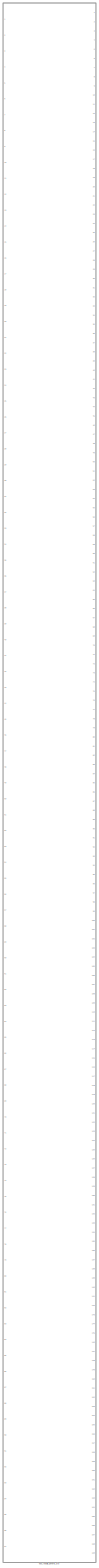
[diagram: root canvas - part 1/1, most of the canvas]
MODEL slx_e97bb59ab6fb
KIND library
CONFIG AbsTol = auto
CONFIG FixedStep = auto
CONFIG MaxStep = auto
CONFIG MinStep = auto
CONFIG RelTol = 1e-3
CONFIG SampleTimeConstraint = Unconstrained
CONFIG Solver = VariableStepAuto
CONFIG SolverMode = Auto
CONFIG SolverName = VariableStepAuto
CONFIG StartTime = 0.0
CONFIG StopTime = 10.0
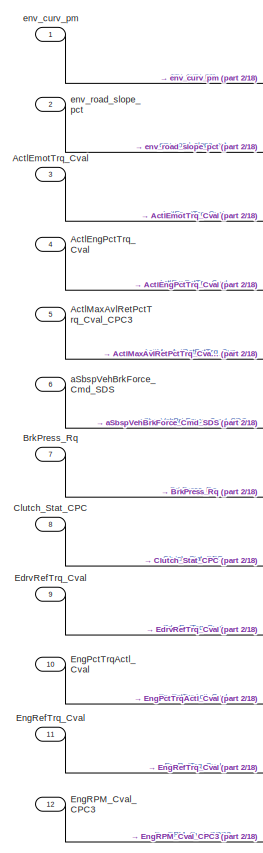
[diagram: ebs_rebuild_generic_std - part 1/18, top left region]
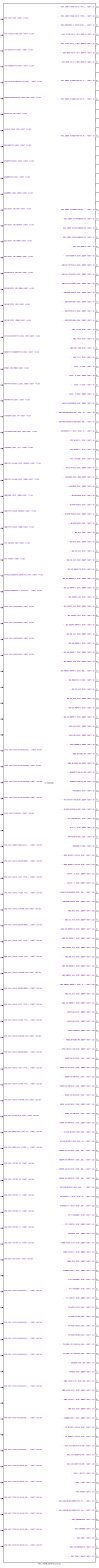
[diagram: ebs_rebuild_generic_std - part 2/18, center side, full height]
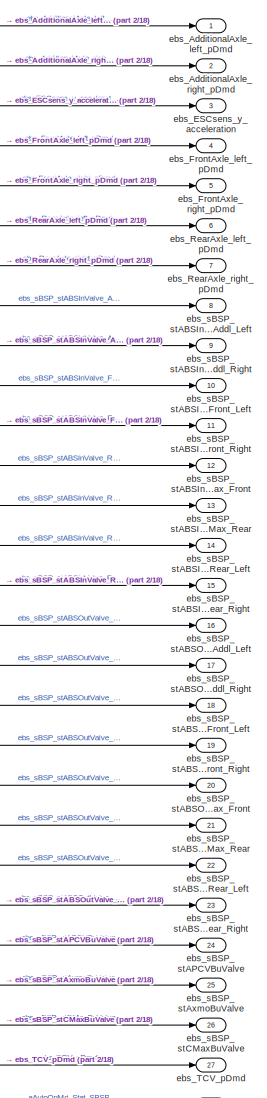
[diagram: ebs_rebuild_generic_std - part 3/18, top right region]
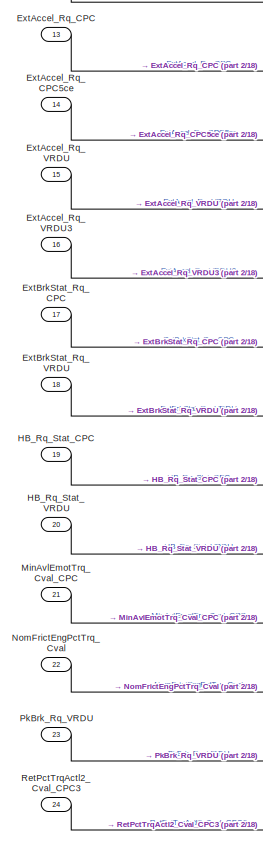
[diagram: ebs_rebuild_generic_std - part 4/18, top left region]
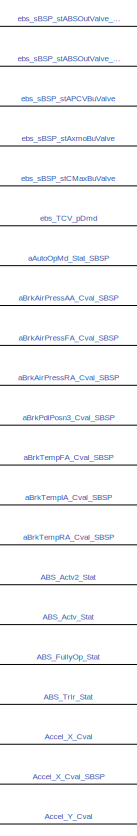
[diagram: ebs_rebuild_generic_std - part 5/18, top right region]
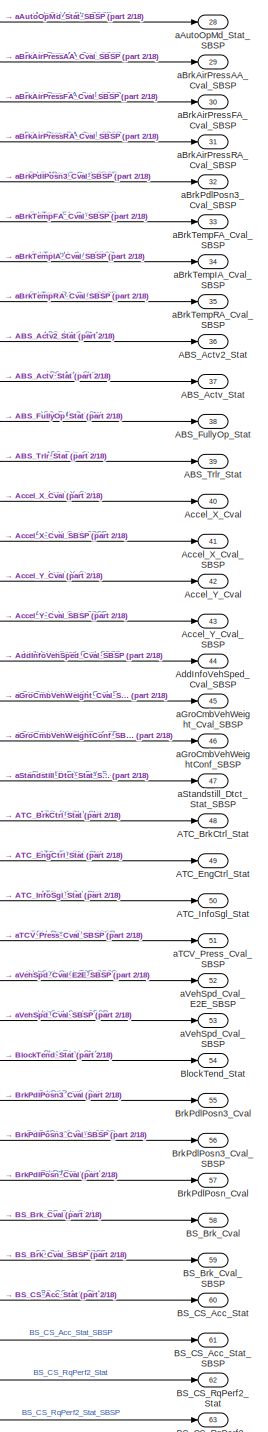
[diagram: ebs_rebuild_generic_std - part 6/18, top right region]
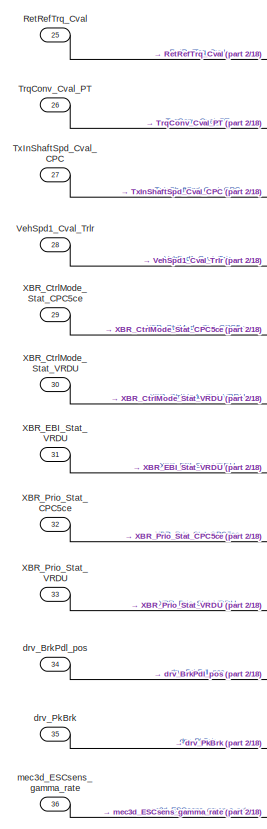
[diagram: ebs_rebuild_generic_std - part 7/18, top left region]
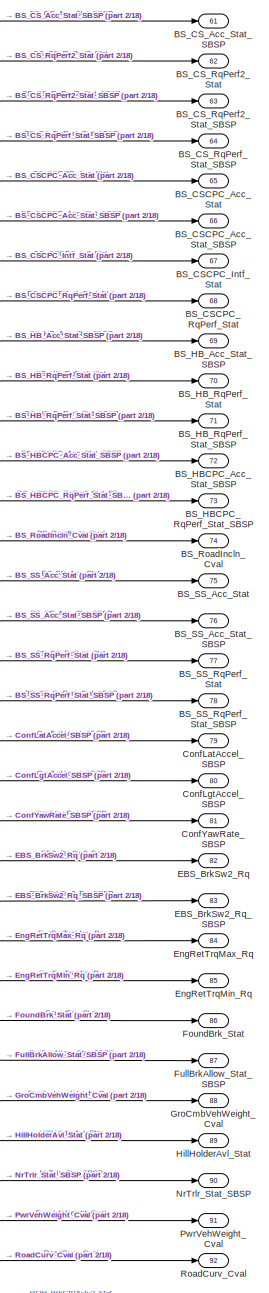
[diagram: ebs_rebuild_generic_std - part 8/18, middle right region]
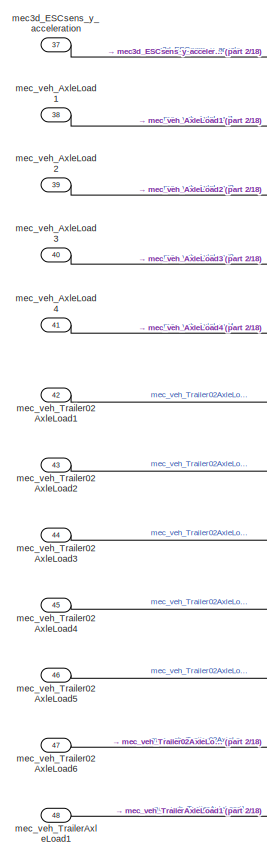
[diagram: ebs_rebuild_generic_std - part 9/18, middle left region]
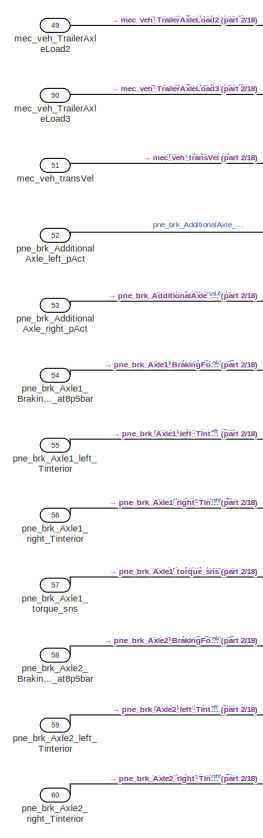
[diagram: ebs_rebuild_generic_std - part 10/18, middle left region]
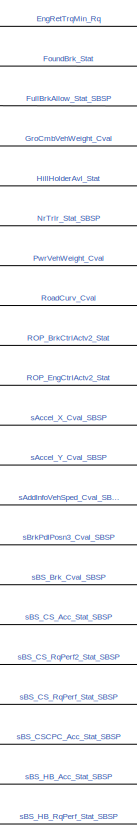
[diagram: ebs_rebuild_generic_std - part 11/18, middle right region]
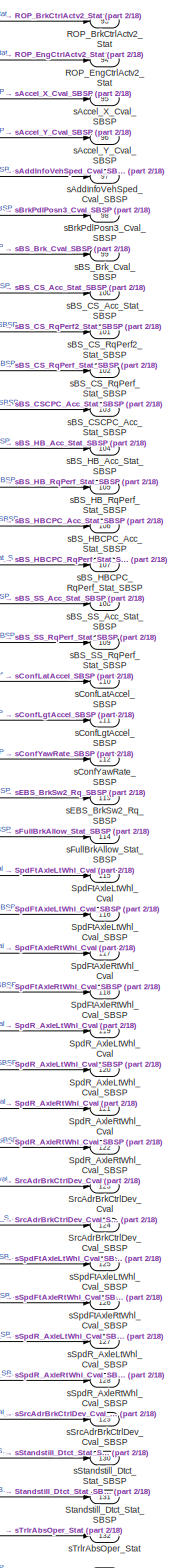
[diagram: ebs_rebuild_generic_std - part 12/18, middle right region]
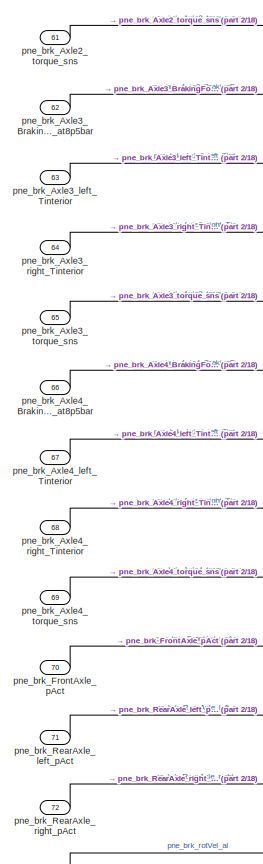
[diagram: ebs_rebuild_generic_std - part 13/18, bottom left region]
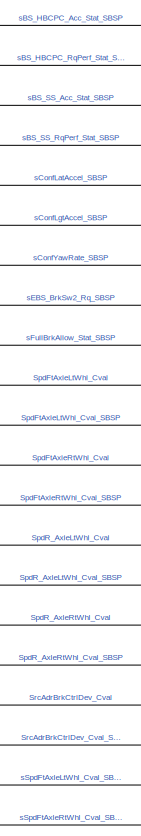
[diagram: ebs_rebuild_generic_std - part 14/18, bottom right region]
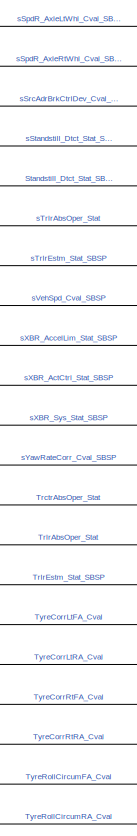
[diagram: ebs_rebuild_generic_std - part 15/18, bottom right region]
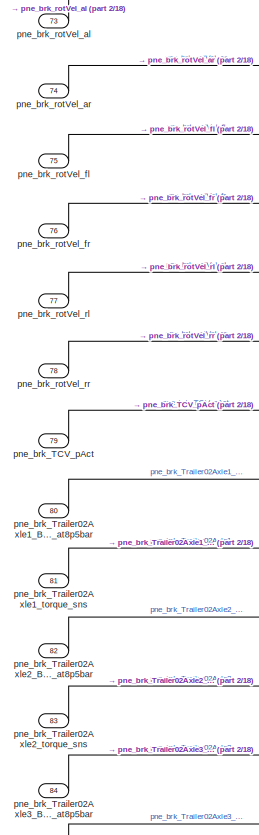
[diagram: ebs_rebuild_generic_std - part 16/18, bottom left region]
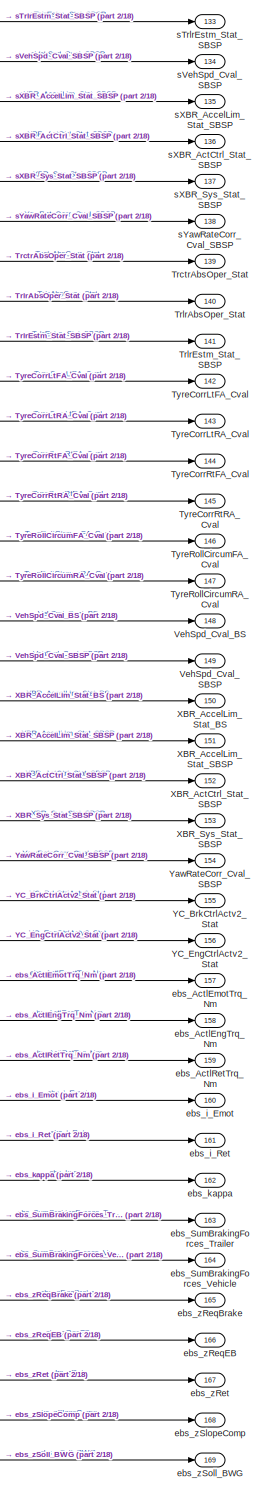
[diagram: ebs_rebuild_generic_std - part 17/18, bottom right region]
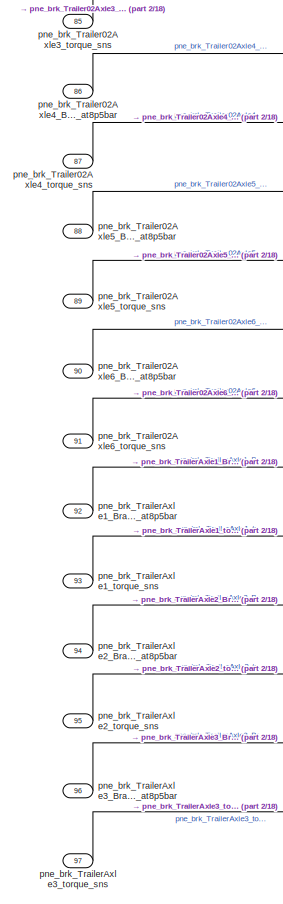
[diagram: ebs_rebuild_generic_std - part 18/18, bottom left region]
BLOCK [SubSystem] ebs_rebuild_generic_std
  Ports = [97, 169]
  RequestExecContextInheritance = off
  Variant = off
BLOCK [Outport] ebs_rebuild_generic_std/ABS_Actv2_Stat
  IconDisplay = Port number
  Port = 36
BLOCK [Outport] ebs_rebuild_generic_std/ABS_Actv_Stat
  IconDisplay = Port number
  Port = 37
BLOCK [Outport] ebs_rebuild_generic_std/ABS_FullyOp_Stat
  IconDisplay = Port number
  Port = 38
BLOCK [Outport] ebs_rebuild_generic_std/ABS_Trlr_Stat
  IconDisplay = Port number
  Port = 39
BLOCK [Outport] ebs_rebuild_generic_std/ATC_BrkCtrl_Stat
  IconDisplay = Port number
  Port = 48
BLOCK [Outport] ebs_rebuild_generic_std/ATC_EngCtrl_Stat
  IconDisplay = Port number
  Port = 49
BLOCK [Outport] ebs_rebuild_generic_std/ATC_InfoSgl_Stat
  IconDisplay = Port number
  Port = 50
BLOCK [Outport] ebs_rebuild_generic_std/Accel_X_Cval
  IconDisplay = Port number
  Port = 40
BLOCK [Outport] ebs_rebuild_generic_std/Accel_X_Cval_SBSP
  IconDisplay = Port number
  Port = 41
BLOCK [Outport] ebs_rebuild_generic_std/Accel_Y_Cval
  IconDisplay = Port number
  Port = 42
BLOCK [Outport] ebs_rebuild_generic_std/Accel_Y_Cval_SBSP
  IconDisplay = Port number
  Port = 43
BLOCK [Inport] ebs_rebuild_generic_std/ActlEmotTrq_Cval
  IconDisplay = Port number
  Port = 3
BLOCK [Inport] ebs_rebuild_generic_std/ActlEngPctTrq_Cval
  IconDisplay = Port number
  Port = 4
BLOCK [Inport] ebs_rebuild_generic_std/ActlMaxAvlRetPctTrq_Cval_CPC3
  IconDisplay = Port number
  Port = 5
BLOCK [Outport] ebs_rebuild_generic_std/AddInfoVehSped_Cval_SBSP
  IconDisplay = Port number
  Port = 44
BLOCK [Outport] ebs_rebuild_generic_std/BS_Brk_Cval
  IconDisplay = Port number
  Port = 58
BLOCK [Outport] ebs_rebuild_generic_std/BS_Brk_Cval_SBSP
  IconDisplay = Port number
  Port = 59
BLOCK [Outport] ebs_rebuild_generic_std/BS_CSCPC_Acc_Stat
  IconDisplay = Port number
  Port = 65
BLOCK [Outport] ebs_rebuild_generic_std/BS_CSCPC_Acc_Stat_SBSP
  IconDisplay = Port number
  Port = 66
BLOCK [Outport] ebs_rebuild_generic_std/BS_CSCPC_Intf_Stat
  IconDisplay = Port number
  Port = 67
BLOCK [Outport] ebs_rebuild_generic_std/BS_CSCPC_RqPerf_Stat
  IconDisplay = Port number
  Port = 68
BLOCK [Outport] ebs_rebuild_generic_std/BS_CS_Acc_Stat
  IconDisplay = Port number
  Port = 60
BLOCK [Outport] ebs_rebuild_generic_std/BS_CS_Acc_Stat_SBSP
  IconDisplay = Port number
  Port = 61
BLOCK [Outport] ebs_rebuild_generic_std/BS_CS_RqPerf2_Stat
  IconDisplay = Port number
  Port = 62
BLOCK [Outport] ebs_rebuild_generic_std/BS_CS_RqPerf2_Stat_SBSP
  IconDisplay = Port number
  Port = 63
BLOCK [Outport] ebs_rebuild_generic_std/BS_CS_RqPerf_Stat_SBSP
  IconDisplay = Port number
  Port = 64
BLOCK [Outport] ebs_rebuild_generic_std/BS_HBCPC_Acc_Stat_SBSP
  IconDisplay = Port number
  Port = 72
BLOCK [Outport] ebs_rebuild_generic_std/BS_HBCPC_RqPerf_Stat_SBSP
  IconDisplay = Port number
  Port = 73
BLOCK [Outport] ebs_rebuild_generic_std/BS_HB_Acc_Stat_SBSP
  IconDisplay = Port number
  Port = 69
BLOCK [Outport] ebs_rebuild_generic_std/BS_HB_RqPerf_Stat
  IconDisplay = Port number
  Port = 70
BLOCK [Outport] ebs_rebuild_generic_std/BS_HB_RqPerf_Stat_SBSP
  IconDisplay = Port number
  Port = 71
BLOCK [Outport] ebs_rebuild_generic_std/BS_RoadIncln_Cval
  IconDisplay = Port number
  Port = 74
BLOCK [Outport] ebs_rebuild_generic_std/BS_SS_Acc_Stat
  IconDisplay = Port number
  Port = 75
BLOCK [Outport] ebs_rebuild_generic_std/BS_SS_Acc_Stat_SBSP
  IconDisplay = Port number
  Port = 76
BLOCK [Outport] ebs_rebuild_generic_std/BS_SS_RqPerf_Stat
  IconDisplay = Port number
  Port = 77
BLOCK [Outport] ebs_rebuild_generic_std/BS_SS_RqPerf_Stat_SBSP
  IconDisplay = Port number
  Port = 78
BLOCK [Outport] ebs_rebuild_generic_std/BlockTend_Stat
  IconDisplay = Port number
  Port = 54
BLOCK [Outport] ebs_rebuild_generic_std/BrkPdlPosn3_Cval
  IconDisplay = Port number
  Port = 55
BLOCK [Outport] ebs_rebuild_generic_std/BrkPdlPosn3_Cval_SBSP
  IconDisplay = Port number
  Port = 56
BLOCK [Outport] ebs_rebuild_generic_std/BrkPdlPosn_Cval
  IconDisplay = Port number
  Port = 57
BLOCK [Inport] ebs_rebuild_generic_std/BrkPress_Rq
  IconDisplay = Port number
  Port = 7
BLOCK [Inport] ebs_rebuild_generic_std/Clutch_Stat_CPC
  IconDisplay = Port number
  Port = 8
BLOCK [Outport] ebs_rebuild_generic_std/ConfLatAccel_SBSP
  IconDisplay = Port number
  Port = 79
BLOCK [Outport] ebs_rebuild_generic_std/ConfLgtAccel_SBSP
  IconDisplay = Port number
  Port = 80
BLOCK [Outport] ebs_rebuild_generic_std/ConfYawRate_SBSP
  IconDisplay = Port number
  Port = 81
BLOCK [Outport] ebs_rebuild_generic_std/EBS_BrkSw2_Rq
  IconDisplay = Port number
  Port = 82
BLOCK [Outport] ebs_rebuild_generic_std/EBS_BrkSw2_Rq_SBSP
  IconDisplay = Port number
  Port = 83
BLOCK [Inport] ebs_rebuild_generic_std/EdrvRefTrq_Cval
  IconDisplay = Port number
  Port = 9
BLOCK [Inport] ebs_rebuild_generic_std/EngPctTrqActl_Cval
  IconDisplay = Port number
  Port = 10
BLOCK [Inport] ebs_rebuild_generic_std/EngRPM_Cval_CPC3
  IconDisplay = Port number
  Port = 12
BLOCK [Inport] ebs_rebuild_generic_std/EngRefTrq_Cval
  IconDisplay = Port number
  Port = 11
BLOCK [Outport] ebs_rebuild_generic_std/EngRetTrqMax_Rq
  IconDisplay = Port number
  Port = 84
BLOCK [Outport] ebs_rebuild_generic_std/EngRetTrqMin_Rq
  IconDisplay = Port number
  Port = 85
BLOCK [Inport] ebs_rebuild_generic_std/ExtAccel_Rq_CPC
  IconDisplay = Port number
  Port = 13
BLOCK [Inport] ebs_rebuild_generic_std/ExtAccel_Rq_CPC5ce
  IconDisplay = Port number
  Port = 14
BLOCK [Inport] ebs_rebuild_generic_std/ExtAccel_Rq_VRDU
  IconDisplay = Port number
  Port = 15
BLOCK [Inport] ebs_rebuild_generic_std/ExtAccel_Rq_VRDU3
  IconDisplay = Port number
  Port = 16
BLOCK [Inport] ebs_rebuild_generic_std/ExtBrkStat_Rq_CPC
  IconDisplay = Port number
  Port = 17
BLOCK [Inport] ebs_rebuild_generic_std/ExtBrkStat_Rq_VRDU
  IconDisplay = Port number
  Port = 18
BLOCK [Outport] ebs_rebuild_generic_std/FoundBrk_Stat
  IconDisplay = Port number
  Port = 86
BLOCK [Outport] ebs_rebuild_generic_std/FullBrkAllow_Stat_SBSP
  IconDisplay = Port number
  Port = 87
BLOCK [Outport] ebs_rebuild_generic_std/GroCmbVehWeight_Cval
  IconDisplay = Port number
  Port = 88
BLOCK [Inport] ebs_rebuild_generic_std/HB_Rq_Stat_CPC
  IconDisplay = Port number
  Port = 19
BLOCK [Inport] ebs_rebuild_generic_std/HB_Rq_Stat_VRDU
  IconDisplay = Port number
  Port = 20
BLOCK [Outport] ebs_rebuild_generic_std/HillHolderAvl_Stat
  IconDisplay = Port number
  Port = 89
BLOCK [Inport] ebs_rebuild_generic_std/MinAvlEmotTrq_Cval_CPC
  IconDisplay = Port number
  Port = 21
BLOCK [Inport] ebs_rebuild_generic_std/NomFrictEngPctTrq_Cval
  IconDisplay = Port number
  Port = 22
BLOCK [Outport] ebs_rebuild_generic_std/NrTrlr_Stat_SBSP
  IconDisplay = Port number
  Port = 90
BLOCK [Inport] ebs_rebuild_generic_std/PkBrk_Rq_VRDU
  IconDisplay = Port number
  Port = 23
BLOCK [Outport] ebs_rebuild_generic_std/PwrVehWeight_Cval
  IconDisplay = Port number
  Port = 91
BLOCK [Outport] ebs_rebuild_generic_std/ROP_BrkCtrlActv2_Stat
  IconDisplay = Port number
  Port = 93
BLOCK [Outport] ebs_rebuild_generic_std/ROP_EngCtrlActv2_Stat
  IconDisplay = Port number
  Port = 94
BLOCK [Inport] ebs_rebuild_generic_std/RetPctTrqActl2_Cval_CPC3
  IconDisplay = Port number
  Port = 24
BLOCK [Inport] ebs_rebuild_generic_std/RetRefTrq_Cval
  IconDisplay = Port number
  Port = 25
BLOCK [Outport] ebs_rebuild_generic_std/RoadCurv_Cval
  IconDisplay = Port number
  Port = 92
BLOCK [Outport] ebs_rebuild_generic_std/SpdFtAxleLtWhl_Cval
  IconDisplay = Port number
  Port = 115
BLOCK [Outport] ebs_rebuild_generic_std/SpdFtAxleLtWhl_Cval_SBSP
  IconDisplay = Port number
  Port = 116
BLOCK [Outport] ebs_rebuild_generic_std/SpdFtAxleRtWhl_Cval
  IconDisplay = Port number
  Port = 117
BLOCK [Outport] ebs_rebuild_generic_std/SpdFtAxleRtWhl_Cval_SBSP
  IconDisplay = Port number
  Port = 118
BLOCK [Outport] ebs_rebuild_generic_std/SpdR_AxleLtWhl_Cval
  IconDisplay = Port number
  Port = 119
BLOCK [Outport] ebs_rebuild_generic_std/SpdR_AxleLtWhl_Cval_SBSP
  IconDisplay = Port number
  Port = 120
BLOCK [Outport] ebs_rebuild_generic_std/SpdR_AxleRtWhl_Cval
  IconDisplay = Port number
  Port = 121
BLOCK [Outport] ebs_rebuild_generic_std/SpdR_AxleRtWhl_Cval_SBSP
  IconDisplay = Port number
  Port = 122
BLOCK [Outport] ebs_rebuild_generic_std/SrcAdrBrkCtrlDev_Cval
  IconDisplay = Port number
  Port = 123
BLOCK [Outport] ebs_rebuild_generic_std/SrcAdrBrkCtrlDev_Cval_SBSP
  IconDisplay = Port number
  Port = 124
BLOCK [Outport] ebs_rebuild_generic_std/Standstill_Dtct_Stat_SBSP
  IconDisplay = Port number
  Port = 131
BLOCK [Outport] ebs_rebuild_generic_std/TrctrAbsOper_Stat
  IconDisplay = Port number
  Port = 139
BLOCK [Outport] ebs_rebuild_generic_std/TrlrAbsOper_Stat
  IconDisplay = Port number
  Port = 140
BLOCK [Outport] ebs_rebuild_generic_std/TrlrEstm_Stat_SBSP
  IconDisplay = Port number
  Port = 141
BLOCK [Inport] ebs_rebuild_generic_std/TrqConv_Cval_PT
  IconDisplay = Port number
  Port = 26
BLOCK [Inport] ebs_rebuild_generic_std/TxInShaftSpd_Cval_CPC
  IconDisplay = Port number
  Port = 27
BLOCK [Outport] ebs_rebuild_generic_std/TyreCorrLtFA_Cval
  IconDisplay = Port number
  Port = 142
BLOCK [Outport] ebs_rebuild_generic_std/TyreCorrLtRA_Cval
  IconDisplay = Port number
  Port = 143
BLOCK [Outport] ebs_rebuild_generic_std/TyreCorrRtFA_Cval
  IconDisplay = Port number
  Port = 144
BLOCK [Outport] ebs_rebuild_generic_std/TyreCorrRtRA_Cval
  IconDisplay = Port number
  Port = 145
BLOCK [Outport] ebs_rebuild_generic_std/TyreRollCircumFA_Cval
  IconDisplay = Port number
  Port = 146
BLOCK [Outport] ebs_rebuild_generic_std/TyreRollCircumRA_Cval
  IconDisplay = Port number
  Port = 147
BLOCK [Inport] ebs_rebuild_generic_std/VehSpd1_Cval_Trlr
  IconDisplay = Port number
  Port = 28
BLOCK [Outport] ebs_rebuild_generic_std/VehSpd_Cval_BS
  IconDisplay = Port number
  Port = 148
BLOCK [Outport] ebs_rebuild_generic_std/VehSpd_Cval_SBSP
  IconDisplay = Port number
  Port = 149
BLOCK [Outport] ebs_rebuild_generic_std/XBR_AccelLim_Stat_BS
  IconDisplay = Port number
  Port = 150
BLOCK [Outport] ebs_rebuild_generic_std/XBR_AccelLim_Stat_SBSP
  IconDisplay = Port number
  Port = 151
BLOCK [Outport] ebs_rebuild_generic_std/XBR_ActCtrl_Stat_SBSP
  IconDisplay = Port number
  Port = 152
BLOCK [Inport] ebs_rebuild_generic_std/XBR_CtrlMode_Stat_CPC5ce
  IconDisplay = Port number
  Port = 29
BLOCK [Inport] ebs_rebuild_generic_std/XBR_CtrlMode_Stat_VRDU
  IconDisplay = Port number
  Port = 30
BLOCK [Inport] ebs_rebuild_generic_std/XBR_EBI_Stat_VRDU
  IconDisplay = Port number
  Port = 31
BLOCK [Inport] ebs_rebuild_generic_std/XBR_Prio_Stat_CPC5ce
  IconDisplay = Port number
  Port = 32
BLOCK [Inport] ebs_rebuild_generic_std/XBR_Prio_Stat_VRDU
  IconDisplay = Port number
  Port = 33
BLOCK [Outport] ebs_rebuild_generic_std/XBR_Sys_Stat_SBSP
  IconDisplay = Port number
  Port = 153
BLOCK [Outport] ebs_rebuild_generic_std/YC_BrkCtrlActv2_Stat
  IconDisplay = Port number
  Port = 155
BLOCK [Outport] ebs_rebuild_generic_std/YC_EngCtrlActv2_Stat
  IconDisplay = Port number
  Port = 156
BLOCK [Outport] ebs_rebuild_generic_std/YawRateCorr_Cval_SBSP
  IconDisplay = Port number
  Port = 154
BLOCK [Outport] ebs_rebuild_generic_std/aAutoOpMd_Stat_SBSP
  IconDisplay = Port number
  Port = 28
BLOCK [Outport] ebs_rebuild_generic_std/aBrkAirPressAA_Cval_SBSP
  IconDisplay = Port number
  Port = 29
BLOCK [Outport] ebs_rebuild_generic_std/aBrkAirPressFA_Cval_SBSP
  IconDisplay = Port number
  Port = 30
BLOCK [Outport] ebs_rebuild_generic_std/aBrkAirPressRA_Cval_SBSP
  IconDisplay = Port number
  Port = 31
BLOCK [Outport] ebs_rebuild_generic_std/aBrkPdlPosn3_Cval_SBSP
  IconDisplay = Port number
  Port = 32
BLOCK [Outport] ebs_rebuild_generic_std/aBrkTempFA_Cval_SBSP
  IconDisplay = Port number
  Port = 33
BLOCK [Outport] ebs_rebuild_generic_std/aBrkTempIA_Cval_SBSP
  IconDisplay = Port number
  Port = 34
BLOCK [Outport] ebs_rebuild_generic_std/aBrkTempRA_Cval_SBSP
  IconDisplay = Port number
  Port = 35
BLOCK [Outport] ebs_rebuild_generic_std/aGroCmbVehWeightConf_SBSP
  IconDisplay = Port number
  Port = 46
BLOCK [Outport] ebs_rebuild_generic_std/aGroCmbVehWeight_Cval_SBSP
  IconDisplay = Port number
  Port = 45
BLOCK [Inport] ebs_rebuild_generic_std/aSbspVehBrkForce_Cmd_SDS
  IconDisplay = Port number
  Port = 6
BLOCK [Outport] ebs_rebuild_generic_std/aStandstill_Dtct_Stat_SBSP
  IconDisplay = Port number
  Port = 47
BLOCK [Outport] ebs_rebuild_generic_std/aTCV_Press_Cval_SBSP
  IconDisplay = Port number
  Port = 51
BLOCK [Outport] ebs_rebuild_generic_std/aVehSpd_Cval_E2E_SBSP
  IconDisplay = Port number
  Port = 52
BLOCK [Outport] ebs_rebuild_generic_std/aVehSpd_Cval_SBSP
  IconDisplay = Port number
  Port = 53
BLOCK [Inport] ebs_rebuild_generic_std/drv_BrkPdl_pos
  IconDisplay = Port number
  Port = 34
BLOCK [Inport] ebs_rebuild_generic_std/drv_PkBrk
  IconDisplay = Port number
  Port = 35
BLOCK [Outport] ebs_rebuild_generic_std/ebs_ActlEmotTrq_Nm
  IconDisplay = Port number
  Port = 157
BLOCK [Outport] ebs_rebuild_generic_std/ebs_ActlEngTrq_Nm
  IconDisplay = Port number
  Port = 158
BLOCK [Outport] ebs_rebuild_generic_std/ebs_ActlRetTrq_Nm
  IconDisplay = Port number
  Port = 159
BLOCK [Outport] ebs_rebuild_generic_std/ebs_AdditionalAxle_left_pDmd
  IconDisplay = Port number
BLOCK [Outport] ebs_rebuild_generic_std/ebs_AdditionalAxle_right_pDmd
  IconDisplay = Port number
  Port = 2
BLOCK [Outport] ebs_rebuild_generic_std/ebs_ESCsens_y_acceleration
  IconDisplay = Port number
  Port = 3
BLOCK [Outport] ebs_rebuild_generic_std/ebs_FrontAxle_left_pDmd
  IconDisplay = Port number
  Port = 4
BLOCK [Outport] ebs_rebuild_generic_std/ebs_FrontAxle_right_pDmd
  IconDisplay = Port number
  Port = 5
BLOCK [Outport] ebs_rebuild_generic_std/ebs_RearAxle_left_pDmd
  IconDisplay = Port number
  Port = 6
BLOCK [Outport] ebs_rebuild_generic_std/ebs_RearAxle_right_pDmd
  IconDisplay = Port number
  Port = 7
BLOCK [Outport] ebs_rebuild_generic_std/ebs_SumBrakingForces_Trailer
  IconDisplay = Port number
  Port = 163
BLOCK [Outport] ebs_rebuild_generic_std/ebs_SumBrakingForces_Vehicle
  IconDisplay = Port number
  Port = 164
BLOCK [Outport] ebs_rebuild_generic_std/ebs_TCV_pDmd
  IconDisplay = Port number
  Port = 27
BLOCK [Outport] ebs_rebuild_generic_std/ebs_i_Emot
  IconDisplay = Port number
  Port = 160
BLOCK [Outport] ebs_rebuild_generic_std/ebs_i_Ret
  IconDisplay = Port number
  Port = 161
BLOCK [Outport] ebs_rebuild_generic_std/ebs_kappa
  IconDisplay = Port number
  Port = 162
BLOCK [S-Function] ebs_rebuild_generic_std/ebs_rebuild_generic_std_sf
  EnableBusSupport = off
  FunctionName = ebs_rebuild_generic_std_sf
  Parameters = s1 s2 p1 p2 p3 p4 p5 p6 p7 p8 p9 p10 p11 p12 p13 p14 p15 p16 p17 p18 p19 p20 p21 p22 p23 p24 p25 p26 p27 p28 p29 p30 p31 p32 p33 p34 p35 p36 p37 p38 p39 p40 p41 p42 p43 p44 p45 p46 p47 p48 p49 p50 p51 p52 p53 p54 p55 p56 p57 p58 p59 p60 p61 p62 p63 p64 p65 p66 p67 p68 p69 p70 p71 p72 p73 p74 p75 p76 p77 p78 p79 p80 p81 p82 p83 p84 p85 p86 p87 p88 p89 p90 p91 p92 p93 p94 p95 p96 p97 p98 p99 p100 p1...<+1052ch>
  Ports = [97, 169]
  SFunctionDeploymentMode = off
  SFunctionModules = ebs_rebuild_generic_std_sf_decl ebs_rebuild_generic_std_sf_functions ebs_rebuild_generic_std_sf_init ebs_rebuild_generic_std_sf_initjac ebs_rebuild_generic_std_sf_jac ITI_ArrayFunctions ITI_big_uint ITI_FixStep_ebs_rebuild_generic_std_sf ITI_Functions ITI_LinSolver ITI_Memory ITI_NonLinSolver_ebs_rebuild_generic_std_sf ITI_SFuncFixStepSolver_ebs_rebuild_generic_std_sf ITI_SFuncHelper ModelicaUtili...<+102ch>
BLOCK [Outport] ebs_rebuild_generic_std/ebs_sBSP_stABSInValve_Addl_Left
  IconDisplay = Port number
  Port = 8
BLOCK [Outport] ebs_rebuild_generic_std/ebs_sBSP_stABSInValve_Addl_Right
  IconDisplay = Port number
  Port = 9
BLOCK [Outport] ebs_rebuild_generic_std/ebs_sBSP_stABSInValve_Front_Left
  IconDisplay = Port number
  Port = 10
BLOCK [Outport] ebs_rebuild_generic_std/ebs_sBSP_stABSInValve_Front_Right
  IconDisplay = Port number
  Port = 11
BLOCK [Outport] ebs_rebuild_generic_std/ebs_sBSP_stABSInValve_RCMax_Front
  IconDisplay = Port number
  Port = 12
BLOCK [Outport] ebs_rebuild_generic_std/ebs_sBSP_stABSInValve_RCMax_Rear
  IconDisplay = Port number
  Port = 13
BLOCK [Outport] ebs_rebuild_generic_std/ebs_sBSP_stABSInValve_Rear_Left
  IconDisplay = Port number
  Port = 14
BLOCK [Outport] ebs_rebuild_generic_std/ebs_sBSP_stABSInValve_Rear_Right
  IconDisplay = Port number
  Port = 15
BLOCK [Outport] ebs_rebuild_generic_std/ebs_sBSP_stABSOutValve_Addl_Left
  IconDisplay = Port number
  Port = 16
BLOCK [Outport] ebs_rebuild_generic_std/ebs_sBSP_stABSOutValve_Addl_Right
  IconDisplay = Port number
  Port = 17
BLOCK [Outport] ebs_rebuild_generic_std/ebs_sBSP_stABSOutValve_Front_Left
  IconDisplay = Port number
  Port = 18
BLOCK [Outport] ebs_rebuild_generic_std/ebs_sBSP_stABSOutValve_Front_Right
  IconDisplay = Port number
  Port = 19
BLOCK [Outport] ebs_rebuild_generic_std/ebs_sBSP_stABSOutValve_RCMax_Front
  IconDisplay = Port number
  Port = 20
BLOCK [Outport] ebs_rebuild_generic_std/ebs_sBSP_stABSOutValve_RCMax_Rear
  IconDisplay = Port number
  Port = 21
BLOCK [Outport] ebs_rebuild_generic_std/ebs_sBSP_stABSOutValve_Rear_Left
  IconDisplay = Port number
  Port = 22
BLOCK [Outport] ebs_rebuild_generic_std/ebs_sBSP_stABSOutValve_Rear_Right
  IconDisplay = Port number
  Port = 23
BLOCK [Outport] ebs_rebuild_generic_std/ebs_sBSP_stAPCVBuValve
  IconDisplay = Port number
  Port = 24
BLOCK [Outport] ebs_rebuild_generic_std/ebs_sBSP_stAxmoBuValve
  IconDisplay = Port number
  Port = 25
BLOCK [Outport] ebs_rebuild_generic_std/ebs_sBSP_stCMaxBuValve
  IconDisplay = Port number
  Port = 26
BLOCK [Outport] ebs_rebuild_generic_std/ebs_zReqBrake
  IconDisplay = Port number
  Port = 165
BLOCK [Outport] ebs_rebuild_generic_std/ebs_zReqEB
  IconDisplay = Port number
  Port = 166
BLOCK [Outport] ebs_rebuild_generic_std/ebs_zRet
  IconDisplay = Port number
  Port = 167
BLOCK [Outport] ebs_rebuild_generic_std/ebs_zSlopeComp
  IconDisplay = Port number
  Port = 168
BLOCK [Outport] ebs_rebuild_generic_std/ebs_zSoll_BWG
  IconDisplay = Port number
  Port = 169
BLOCK [Inport] ebs_rebuild_generic_std/env_curv_pm
  IconDisplay = Port number
BLOCK [Inport] ebs_rebuild_generic_std/env_road_slope_pct
  IconDisplay = Port number
  Port = 2
BLOCK [Inport] ebs_rebuild_generic_std/mec3d_ESCsens_gamma_rate
  IconDisplay = Port number
  Port = 36
BLOCK [Inport] ebs_rebuild_generic_std/mec3d_ESCsens_y_acceleration
  IconDisplay = Port number
  Port = 37
BLOCK [Inport] ebs_rebuild_generic_std/mec_veh_AxleLoad1
  IconDisplay = Port number
  Port = 38
BLOCK [Inport] ebs_rebuild_generic_std/mec_veh_AxleLoad2
  IconDisplay = Port number
  Port = 39
BLOCK [Inport] ebs_rebuild_generic_std/mec_veh_AxleLoad3
  IconDisplay = Port number
  Port = 40
BLOCK [Inport] ebs_rebuild_generic_std/mec_veh_AxleLoad4
  IconDisplay = Port number
  Port = 41
BLOCK [Inport] ebs_rebuild_generic_std/mec_veh_Trailer02AxleLoad1
  IconDisplay = Port number
  Port = 42
BLOCK [Inport] ebs_rebuild_generic_std/mec_veh_Trailer02AxleLoad2
  IconDisplay = Port number
  Port = 43
BLOCK [Inport] ebs_rebuild_generic_std/mec_veh_Trailer02AxleLoad3
  IconDisplay = Port number
  Port = 44
BLOCK [Inport] ebs_rebuild_generic_std/mec_veh_Trailer02AxleLoad4
  IconDisplay = Port number
  Port = 45
BLOCK [Inport] ebs_rebuild_generic_std/mec_veh_Trailer02AxleLoad5
  IconDisplay = Port number
  Port = 46
BLOCK [Inport] ebs_rebuild_generic_std/mec_veh_Trailer02AxleLoad6
  IconDisplay = Port number
  Port = 47
BLOCK [Inport] ebs_rebuild_generic_std/mec_veh_TrailerAxleLoad1
  IconDisplay = Port number
  Port = 48
BLOCK [Inport] ebs_rebuild_generic_std/mec_veh_TrailerAxleLoad2
  IconDisplay = Port number
  Port = 49
BLOCK [Inport] ebs_rebuild_generic_std/mec_veh_TrailerAxleLoad3
  IconDisplay = Port number
  Port = 50
BLOCK [Inport] ebs_rebuild_generic_std/mec_veh_transVel
  IconDisplay = Port number
  Port = 51
BLOCK [Inport] ebs_rebuild_generic_std/pne_brk_AdditionalAxle_left_pAct
  IconDisplay = Port number
  Port = 52
BLOCK [Inport] ebs_rebuild_generic_std/pne_brk_AdditionalAxle_right_pAct
  IconDisplay = Port number
  Port = 53
BLOCK [Inport] ebs_rebuild_generic_std/pne_brk_Axle1_BrakingForce_at8p5bar
  IconDisplay = Port number
  Port = 54
BLOCK [Inport] ebs_rebuild_generic_std/pne_brk_Axle1_left_Tinterior
  IconDisplay = Port number
  Port = 55
BLOCK [Inport] ebs_rebuild_generic_std/pne_brk_Axle1_right_Tinterior
  IconDisplay = Port number
  Port = 56
BLOCK [Inport] ebs_rebuild_generic_std/pne_brk_Axle1_torque_sns
  IconDisplay = Port number
  Port = 57
BLOCK [Inport] ebs_rebuild_generic_std/pne_brk_Axle2_BrakingForce_at8p5bar
  IconDisplay = Port number
  Port = 58
BLOCK [Inport] ebs_rebuild_generic_std/pne_brk_Axle2_left_Tinterior
  IconDisplay = Port number
  Port = 59
BLOCK [Inport] ebs_rebuild_generic_std/pne_brk_Axle2_right_Tinterior
  IconDisplay = Port number
  Port = 60
BLOCK [Inport] ebs_rebuild_generic_std/pne_brk_Axle2_torque_sns
  IconDisplay = Port number
  Port = 61
BLOCK [Inport] ebs_rebuild_generic_std/pne_brk_Axle3_BrakingForce_at8p5bar
  IconDisplay = Port number
  Port = 62
BLOCK [Inport] ebs_rebuild_generic_std/pne_brk_Axle3_left_Tinterior
  IconDisplay = Port number
  Port = 63
BLOCK [Inport] ebs_rebuild_generic_std/pne_brk_Axle3_right_Tinterior
  IconDisplay = Port number
  Port = 64
BLOCK [Inport] ebs_rebuild_generic_std/pne_brk_Axle3_torque_sns
  IconDisplay = Port number
  Port = 65
BLOCK [Inport] ebs_rebuild_generic_std/pne_brk_Axle4_BrakingForce_at8p5bar
  IconDisplay = Port number
  Port = 66
BLOCK [Inport] ebs_rebuild_generic_std/pne_brk_Axle4_left_Tinterior
  IconDisplay = Port number
  Port = 67
BLOCK [Inport] ebs_rebuild_generic_std/pne_brk_Axle4_right_Tinterior
  IconDisplay = Port number
  Port = 68
BLOCK [Inport] ebs_rebuild_generic_std/pne_brk_Axle4_torque_sns
  IconDisplay = Port number
  Port = 69
BLOCK [Inport] ebs_rebuild_generic_std/pne_brk_FrontAxle_pAct
  IconDisplay = Port number
  Port = 70
BLOCK [Inport] ebs_rebuild_generic_std/pne_brk_RearAxle_left_pAct
  IconDisplay = Port number
  Port = 71
BLOCK [Inport] ebs_rebuild_generic_std/pne_brk_RearAxle_right_pAct
  IconDisplay = Port number
  Port = 72
BLOCK [Inport] ebs_rebuild_generic_std/pne_brk_TCV_pAct
  IconDisplay = Port number
  Port = 79
BLOCK [Inport] ebs_rebuild_generic_std/pne_brk_Trailer02Axle1_BrakingForce_at8p5bar
  IconDisplay = Port number
  Port = 80
BLOCK [Inport] ebs_rebuild_generic_std/pne_brk_Trailer02Axle1_torque_sns
  IconDisplay = Port number
  Port = 81
BLOCK [Inport] ebs_rebuild_generic_std/pne_brk_Trailer02Axle2_BrakingForce_at8p5bar
  IconDisplay = Port number
  Port = 82
BLOCK [Inport] ebs_rebuild_generic_std/pne_brk_Trailer02Axle2_torque_sns
  IconDisplay = Port number
  Port = 83
BLOCK [Inport] ebs_rebuild_generic_std/pne_brk_Trailer02Axle3_BrakingForce_at8p5bar
  IconDisplay = Port number
  Port = 84
BLOCK [Inport] ebs_rebuild_generic_std/pne_brk_Trailer02Axle3_torque_sns
  IconDisplay = Port number
  Port = 85
BLOCK [Inport] ebs_rebuild_generic_std/pne_brk_Trailer02Axle4_BrakingForce_at8p5bar
  IconDisplay = Port number
  Port = 86
BLOCK [Inport] ebs_rebuild_generic_std/pne_brk_Trailer02Axle4_torque_sns
  IconDisplay = Port number
  Port = 87
BLOCK [Inport] ebs_rebuild_generic_std/pne_brk_Trailer02Axle5_BrakingForce_at8p5bar
  IconDisplay = Port number
  Port = 88
BLOCK [Inport] ebs_rebuild_generic_std/pne_brk_Trailer02Axle5_torque_sns
  IconDisplay = Port number
  Port = 89
BLOCK [Inport] ebs_rebuild_generic_std/pne_brk_Trailer02Axle6_BrakingForce_at8p5bar
  IconDisplay = Port number
  Port = 90
BLOCK [Inport] ebs_rebuild_generic_std/pne_brk_Trailer02Axle6_torque_sns
  IconDisplay = Port number
  Port = 91
BLOCK [Inport] ebs_rebuild_generic_std/pne_brk_TrailerAxle1_BrakingForce_at8p5bar
  IconDisplay = Port number
  Port = 92
BLOCK [Inport] ebs_rebuild_generic_std/pne_brk_TrailerAxle1_torque_sns
  IconDisplay = Port number
  Port = 93
BLOCK [Inport] ebs_rebuild_generic_std/pne_brk_TrailerAxle2_BrakingForce_at8p5bar
  IconDisplay = Port number
  Port = 94
BLOCK [Inport] ebs_rebuild_generic_std/pne_brk_TrailerAxle2_torque_sns
  IconDisplay = Port number
  Port = 95
BLOCK [Inport] ebs_rebuild_generic_std/pne_brk_TrailerAxle3_BrakingForce_at8p5bar
  IconDisplay = Port number
  Port = 96
BLOCK [Inport] ebs_rebuild_generic_std/pne_brk_TrailerAxle3_torque_sns
  IconDisplay = Port number
  Port = 97
BLOCK [Inport] ebs_rebuild_generic_std/pne_brk_rotVel_al
  IconDisplay = Port number
  Port = 73
BLOCK [Inport] ebs_rebuild_generic_std/pne_brk_rotVel_ar
  IconDisplay = Port number
  Port = 74
BLOCK [Inport] ebs_rebuild_generic_std/pne_brk_rotVel_fl
  IconDisplay = Port number
  Port = 75
BLOCK [Inport] ebs_rebuild_generic_std/pne_brk_rotVel_fr
  IconDisplay = Port number
  Port = 76
BLOCK [Inport] ebs_rebuild_generic_std/pne_brk_rotVel_rl
  IconDisplay = Port number
  Port = 77
BLOCK [Inport] ebs_rebuild_generic_std/pne_brk_rotVel_rr
  IconDisplay = Port number
  Port = 78
BLOCK [Outport] ebs_rebuild_generic_std/sAccel_X_Cval_SBSP
  IconDisplay = Port number
  Port = 95
BLOCK [Outport] ebs_rebuild_generic_std/sAccel_Y_Cval_SBSP
  IconDisplay = Port number
  Port = 96
BLOCK [Outport] ebs_rebuild_generic_std/sAddInfoVehSped_Cval_SBSP
  IconDisplay = Port number
  Port = 97
BLOCK [Outport] ebs_rebuild_generic_std/sBS_Brk_Cval_SBSP
  IconDisplay = Port number
  Port = 99
BLOCK [Outport] ebs_rebuild_generic_std/sBS_CSCPC_Acc_Stat_SBSP
  IconDisplay = Port number
  Port = 103
BLOCK [Outport] ebs_rebuild_generic_std/sBS_CS_Acc_Stat_SBSP
  IconDisplay = Port number
  Port = 100
BLOCK [Outport] ebs_rebuild_generic_std/sBS_CS_RqPerf2_Stat_SBSP
  IconDisplay = Port number
  Port = 101
BLOCK [Outport] ebs_rebuild_generic_std/sBS_CS_RqPerf_Stat_SBSP
  IconDisplay = Port number
  Port = 102
BLOCK [Outport] ebs_rebuild_generic_std/sBS_HBCPC_Acc_Stat_SBSP
  IconDisplay = Port number
  Port = 106
BLOCK [Outport] ebs_rebuild_generic_std/sBS_HBCPC_RqPerf_Stat_SBSP
  IconDisplay = Port number
  Port = 107
BLOCK [Outport] ebs_rebuild_generic_std/sBS_HB_Acc_Stat_SBSP
  IconDisplay = Port number
  Port = 104
BLOCK [Outport] ebs_rebuild_generic_std/sBS_HB_RqPerf_Stat_SBSP
  IconDisplay = Port number
  Port = 105
BLOCK [Outport] ebs_rebuild_generic_std/sBS_SS_Acc_Stat_SBSP
  IconDisplay = Port number
  Port = 108
BLOCK [Outport] ebs_rebuild_generic_std/sBS_SS_RqPerf_Stat_SBSP
  IconDisplay = Port number
  Port = 109
BLOCK [Outport] ebs_rebuild_generic_std/sBrkPdlPosn3_Cval_SBSP
  IconDisplay = Port number
  Port = 98
BLOCK [Outport] ebs_rebuild_generic_std/sConfLatAccel_SBSP
  IconDisplay = Port number
  Port = 110
BLOCK [Outport] ebs_rebuild_generic_std/sConfLgtAccel_SBSP
  IconDisplay = Port number
  Port = 111
BLOCK [Outport] ebs_rebuild_generic_std/sConfYawRate_SBSP
  IconDisplay = Port number
  Port = 112
BLOCK [Outport] ebs_rebuild_generic_std/sEBS_BrkSw2_Rq_SBSP
  IconDisplay = Port number
  Port = 113
BLOCK [Outport] ebs_rebuild_generic_std/sFullBrkAllow_Stat_SBSP
  IconDisplay = Port number
  Port = 114
BLOCK [Outport] ebs_rebuild_generic_std/sSpdFtAxleLtWhl_Cval_SBSP
  IconDisplay = Port number
  Port = 125
BLOCK [Outport] ebs_rebuild_generic_std/sSpdFtAxleRtWhl_Cval_SBSP
  IconDisplay = Port number
  Port = 126
BLOCK [Outport] ebs_rebuild_generic_std/sSpdR_AxleLtWhl_Cval_SBSP
  IconDisplay = Port number
  Port = 127
BLOCK [Outport] ebs_rebuild_generic_std/sSpdR_AxleRtWhl_Cval_SBSP
  IconDisplay = Port number
  Port = 128
BLOCK [Outport] ebs_rebuild_generic_std/sSrcAdrBrkCtrlDev_Cval_SBSP
  IconDisplay = Port number
  Port = 129
BLOCK [Outport] ebs_rebuild_generic_std/sStandstill_Dtct_Stat_SBSP
  IconDisplay = Port number
  Port = 130
BLOCK [Outport] ebs_rebuild_generic_std/sTrlrAbsOper_Stat
  IconDisplay = Port number
  Port = 132
BLOCK [Outport] ebs_rebuild_generic_std/sTrlrEstm_Stat_SBSP
  IconDisplay = Port number
  Port = 133
BLOCK [Outport] ebs_rebuild_generic_std/sVehSpd_Cval_SBSP
  IconDisplay = Port number
  Port = 134
BLOCK [Outport] ebs_rebuild_generic_std/sXBR_AccelLim_Stat_SBSP
  IconDisplay = Port number
  Port = 135
BLOCK [Outport] ebs_rebuild_generic_std/sXBR_ActCtrl_Stat_SBSP
  IconDisplay = Port number
  Port = 136
BLOCK [Outport] ebs_rebuild_generic_std/sXBR_Sys_Stat_SBSP
  IconDisplay = Port number
  Port = 137
BLOCK [Outport] ebs_rebuild_generic_std/sYawRateCorr_Cval_SBSP
  IconDisplay = Port number
  Port = 138
LINE ebs_rebuild_generic_std/ActlEmotTrq_Cval:1 -> ebs_rebuild_generic_std/ebs_rebuild_generic_std_sf:3
LINE ebs_rebuild_generic_std/ActlEngPctTrq_Cval:1 -> ebs_rebuild_generic_std/ebs_rebuild_generic_std_sf:4
LINE ebs_rebuild_generic_std/ActlMaxAvlRetPctTrq_Cval_CPC3:1 -> ebs_rebuild_generic_std/ebs_rebuild_generic_std_sf:5
LINE ebs_rebuild_generic_std/BrkPress_Rq:1 -> ebs_rebuild_generic_std/ebs_rebuild_generic_std_sf:7
LINE ebs_rebuild_generic_std/Clutch_Stat_CPC:1 -> ebs_rebuild_generic_std/ebs_rebuild_generic_std_sf:8
LINE ebs_rebuild_generic_std/EdrvRefTrq_Cval:1 -> ebs_rebuild_generic_std/ebs_rebuild_generic_std_sf:9
LINE ebs_rebuild_generic_std/EngPctTrqActl_Cval:1 -> ebs_rebuild_generic_std/ebs_rebuild_generic_std_sf:10
LINE ebs_rebuild_generic_std/EngRPM_Cval_CPC3:1 -> ebs_rebuild_generic_std/ebs_rebuild_generic_std_sf:12
LINE ebs_rebuild_generic_std/EngRefTrq_Cval:1 -> ebs_rebuild_generic_std/ebs_rebuild_generic_std_sf:11
LINE ebs_rebuild_generic_std/ExtAccel_Rq_CPC5ce:1 -> ebs_rebuild_generic_std/ebs_rebuild_generic_std_sf:14
LINE ebs_rebuild_generic_std/ExtAccel_Rq_CPC:1 -> ebs_rebuild_generic_std/ebs_rebuild_generic_std_sf:13
LINE ebs_rebuild_generic_std/ExtAccel_Rq_VRDU3:1 -> ebs_rebuild_generic_std/ebs_rebuild_generic_std_sf:16
LINE ebs_rebuild_generic_std/ExtAccel_Rq_VRDU:1 -> ebs_rebuild_generic_std/ebs_rebuild_generic_std_sf:15
LINE ebs_rebuild_generic_std/ExtBrkStat_Rq_CPC:1 -> ebs_rebuild_generic_std/ebs_rebuild_generic_std_sf:17
LINE ebs_rebuild_generic_std/ExtBrkStat_Rq_VRDU:1 -> ebs_rebuild_generic_std/ebs_rebuild_generic_std_sf:18
LINE ebs_rebuild_generic_std/HB_Rq_Stat_CPC:1 -> ebs_rebuild_generic_std/ebs_rebuild_generic_std_sf:19
LINE ebs_rebuild_generic_std/HB_Rq_Stat_VRDU:1 -> ebs_rebuild_generic_std/ebs_rebuild_generic_std_sf:20
LINE ebs_rebuild_generic_std/MinAvlEmotTrq_Cval_CPC:1 -> ebs_rebuild_generic_std/ebs_rebuild_generic_std_sf:21
LINE ebs_rebuild_generic_std/NomFrictEngPctTrq_Cval:1 -> ebs_rebuild_generic_std/ebs_rebuild_generic_std_sf:22
LINE ebs_rebuild_generic_std/PkBrk_Rq_VRDU:1 -> ebs_rebuild_generic_std/ebs_rebuild_generic_std_sf:23
LINE ebs_rebuild_generic_std/RetPctTrqActl2_Cval_CPC3:1 -> ebs_rebuild_generic_std/ebs_rebuild_generic_std_sf:24
LINE ebs_rebuild_generic_std/RetRefTrq_Cval:1 -> ebs_rebuild_generic_std/ebs_rebuild_generic_std_sf:25
LINE ebs_rebuild_generic_std/TrqConv_Cval_PT:1 -> ebs_rebuild_generic_std/ebs_rebuild_generic_std_sf:26
LINE ebs_rebuild_generic_std/TxInShaftSpd_Cval_CPC:1 -> ebs_rebuild_generic_std/ebs_rebuild_generic_std_sf:27
LINE ebs_rebuild_generic_std/VehSpd1_Cval_Trlr:1 -> ebs_rebuild_generic_std/ebs_rebuild_generic_std_sf:28
LINE ebs_rebuild_generic_std/XBR_CtrlMode_Stat_CPC5ce:1 -> ebs_rebuild_generic_std/ebs_rebuild_generic_std_sf:29
LINE ebs_rebuild_generic_std/XBR_CtrlMode_Stat_VRDU:1 -> ebs_rebuild_generic_std/ebs_rebuild_generic_std_sf:30
LINE ebs_rebuild_generic_std/XBR_EBI_Stat_VRDU:1 -> ebs_rebuild_generic_std/ebs_rebuild_generic_std_sf:31
LINE ebs_rebuild_generic_std/XBR_Prio_Stat_CPC5ce:1 -> ebs_rebuild_generic_std/ebs_rebuild_generic_std_sf:32
LINE ebs_rebuild_generic_std/XBR_Prio_Stat_VRDU:1 -> ebs_rebuild_generic_std/ebs_rebuild_generic_std_sf:33
LINE ebs_rebuild_generic_std/aSbspVehBrkForce_Cmd_SDS:1 -> ebs_rebuild_generic_std/ebs_rebuild_generic_std_sf:6
LINE ebs_rebuild_generic_std/drv_BrkPdl_pos:1 -> ebs_rebuild_generic_std/ebs_rebuild_generic_std_sf:34
LINE ebs_rebuild_generic_std/drv_PkBrk:1 -> ebs_rebuild_generic_std/ebs_rebuild_generic_std_sf:35
LINE ebs_rebuild_generic_std/ebs_rebuild_generic_std_sf:1 -> ebs_rebuild_generic_std/ebs_AdditionalAxle_left_pDmd:1
LINE ebs_rebuild_generic_std/ebs_rebuild_generic_std_sf:10 -> ebs_rebuild_generic_std/ebs_sBSP_stABSInValve_Front_Left:1
LINE ebs_rebuild_generic_std/ebs_rebuild_generic_std_sf:100 -> ebs_rebuild_generic_std/sBS_CS_Acc_Stat_SBSP:1
LINE ebs_rebuild_generic_std/ebs_rebuild_generic_std_sf:101 -> ebs_rebuild_generic_std/sBS_CS_RqPerf2_Stat_SBSP:1
LINE ebs_rebuild_generic_std/ebs_rebuild_generic_std_sf:102 -> ebs_rebuild_generic_std/sBS_CS_RqPerf_Stat_SBSP:1
LINE ebs_rebuild_generic_std/ebs_rebuild_generic_std_sf:103 -> ebs_rebuild_generic_std/sBS_CSCPC_Acc_Stat_SBSP:1
LINE ebs_rebuild_generic_std/ebs_rebuild_generic_std_sf:104 -> ebs_rebuild_generic_std/sBS_HB_Acc_Stat_SBSP:1
LINE ebs_rebuild_generic_std/ebs_rebuild_generic_std_sf:105 -> ebs_rebuild_generic_std/sBS_HB_RqPerf_Stat_SBSP:1
LINE ebs_rebuild_generic_std/ebs_rebuild_generic_std_sf:106 -> ebs_rebuild_generic_std/sBS_HBCPC_Acc_Stat_SBSP:1
LINE ebs_rebuild_generic_std/ebs_rebuild_generic_std_sf:107 -> ebs_rebuild_generic_std/sBS_HBCPC_RqPerf_Stat_SBSP:1
LINE ebs_rebuild_generic_std/ebs_rebuild_generic_std_sf:108 -> ebs_rebuild_generic_std/sBS_SS_Acc_Stat_SBSP:1
LINE ebs_rebuild_generic_std/ebs_rebuild_generic_std_sf:109 -> ebs_rebuild_generic_std/sBS_SS_RqPerf_Stat_SBSP:1
LINE ebs_rebuild_generic_std/ebs_rebuild_generic_std_sf:11 -> ebs_rebuild_generic_std/ebs_sBSP_stABSInValve_Front_Right:1
LINE ebs_rebuild_generic_std/ebs_rebuild_generic_std_sf:110 -> ebs_rebuild_generic_std/sConfLatAccel_SBSP:1
LINE ebs_rebuild_generic_std/ebs_rebuild_generic_std_sf:111 -> ebs_rebuild_generic_std/sConfLgtAccel_SBSP:1
LINE ebs_rebuild_generic_std/ebs_rebuild_generic_std_sf:112 -> ebs_rebuild_generic_std/sConfYawRate_SBSP:1
LINE ebs_rebuild_generic_std/ebs_rebuild_generic_std_sf:113 -> ebs_rebuild_generic_std/sEBS_BrkSw2_Rq_SBSP:1
LINE ebs_rebuild_generic_std/ebs_rebuild_generic_std_sf:114 -> ebs_rebuild_generic_std/sFullBrkAllow_Stat_SBSP:1
LINE ebs_rebuild_generic_std/ebs_rebuild_generic_std_sf:115 -> ebs_rebuild_generic_std/SpdFtAxleLtWhl_Cval:1
LINE ebs_rebuild_generic_std/ebs_rebuild_generic_std_sf:116 -> ebs_rebuild_generic_std/SpdFtAxleLtWhl_Cval_SBSP:1
LINE ebs_rebuild_generic_std/ebs_rebuild_generic_std_sf:117 -> ebs_rebuild_generic_std/SpdFtAxleRtWhl_Cval:1
LINE ebs_rebuild_generic_std/ebs_rebuild_generic_std_sf:118 -> ebs_rebuild_generic_std/SpdFtAxleRtWhl_Cval_SBSP:1
LINE ebs_rebuild_generic_std/ebs_rebuild_generic_std_sf:119 -> ebs_rebuild_generic_std/SpdR_AxleLtWhl_Cval:1
LINE ebs_rebuild_generic_std/ebs_rebuild_generic_std_sf:12 -> ebs_rebuild_generic_std/ebs_sBSP_stABSInValve_RCMax_Front:1
LINE ebs_rebuild_generic_std/ebs_rebuild_generic_std_sf:120 -> ebs_rebuild_generic_std/SpdR_AxleLtWhl_Cval_SBSP:1
LINE ebs_rebuild_generic_std/ebs_rebuild_generic_std_sf:121 -> ebs_rebuild_generic_std/SpdR_AxleRtWhl_Cval:1
LINE ebs_rebuild_generic_std/ebs_rebuild_generic_std_sf:122 -> ebs_rebuild_generic_std/SpdR_AxleRtWhl_Cval_SBSP:1
LINE ebs_rebuild_generic_std/ebs_rebuild_generic_std_sf:123 -> ebs_rebuild_generic_std/SrcAdrBrkCtrlDev_Cval:1
LINE ebs_rebuild_generic_std/ebs_rebuild_generic_std_sf:124 -> ebs_rebuild_generic_std/SrcAdrBrkCtrlDev_Cval_SBSP:1
LINE ebs_rebuild_generic_std/ebs_rebuild_generic_std_sf:125 -> ebs_rebuild_generic_std/sSpdFtAxleLtWhl_Cval_SBSP:1
LINE ebs_rebuild_generic_std/ebs_rebuild_generic_std_sf:126 -> ebs_rebuild_generic_std/sSpdFtAxleRtWhl_Cval_SBSP:1
LINE ebs_rebuild_generic_std/ebs_rebuild_generic_std_sf:127 -> ebs_rebuild_generic_std/sSpdR_AxleLtWhl_Cval_SBSP:1
LINE ebs_rebuild_generic_std/ebs_rebuild_generic_std_sf:128 -> ebs_rebuild_generic_std/sSpdR_AxleRtWhl_Cval_SBSP:1
LINE ebs_rebuild_generic_std/ebs_rebuild_generic_std_sf:129 -> ebs_rebuild_generic_std/sSrcAdrBrkCtrlDev_Cval_SBSP:1
LINE ebs_rebuild_generic_std/ebs_rebuild_generic_std_sf:13 -> ebs_rebuild_generic_std/ebs_sBSP_stABSInValve_RCMax_Rear:1
LINE ebs_rebuild_generic_std/ebs_rebuild_generic_std_sf:130 -> ebs_rebuild_generic_std/sStandstill_Dtct_Stat_SBSP:1
LINE ebs_rebuild_generic_std/ebs_rebuild_generic_std_sf:131 -> ebs_rebuild_generic_std/Standstill_Dtct_Stat_SBSP:1
LINE ebs_rebuild_generic_std/ebs_rebuild_generic_std_sf:132 -> ebs_rebuild_generic_std/sTrlrAbsOper_Stat:1
LINE ebs_rebuild_generic_std/ebs_rebuild_generic_std_sf:133 -> ebs_rebuild_generic_std/sTrlrEstm_Stat_SBSP:1
LINE ebs_rebuild_generic_std/ebs_rebuild_generic_std_sf:134 -> ebs_rebuild_generic_std/sVehSpd_Cval_SBSP:1
LINE ebs_rebuild_generic_std/ebs_rebuild_generic_std_sf:135 -> ebs_rebuild_generic_std/sXBR_AccelLim_Stat_SBSP:1
LINE ebs_rebuild_generic_std/ebs_rebuild_generic_std_sf:136 -> ebs_rebuild_generic_std/sXBR_ActCtrl_Stat_SBSP:1
LINE ebs_rebuild_generic_std/ebs_rebuild_generic_std_sf:137 -> ebs_rebuild_generic_std/sXBR_Sys_Stat_SBSP:1
LINE ebs_rebuild_generic_std/ebs_rebuild_generic_std_sf:138 -> ebs_rebuild_generic_std/sYawRateCorr_Cval_SBSP:1
LINE ebs_rebuild_generic_std/ebs_rebuild_generic_std_sf:139 -> ebs_rebuild_generic_std/TrctrAbsOper_Stat:1
LINE ebs_rebuild_generic_std/ebs_rebuild_generic_std_sf:14 -> ebs_rebuild_generic_std/ebs_sBSP_stABSInValve_Rear_Left:1
LINE ebs_rebuild_generic_std/ebs_rebuild_generic_std_sf:140 -> ebs_rebuild_generic_std/TrlrAbsOper_Stat:1
LINE ebs_rebuild_generic_std/ebs_rebuild_generic_std_sf:141 -> ebs_rebuild_generic_std/TrlrEstm_Stat_SBSP:1
LINE ebs_rebuild_generic_std/ebs_rebuild_generic_std_sf:142 -> ebs_rebuild_generic_std/TyreCorrLtFA_Cval:1
LINE ebs_rebuild_generic_std/ebs_rebuild_generic_std_sf:143 -> ebs_rebuild_generic_std/TyreCorrLtRA_Cval:1
LINE ebs_rebuild_generic_std/ebs_rebuild_generic_std_sf:144 -> ebs_rebuild_generic_std/TyreCorrRtFA_Cval:1
LINE ebs_rebuild_generic_std/ebs_rebuild_generic_std_sf:145 -> ebs_rebuild_generic_std/TyreCorrRtRA_Cval:1
LINE ebs_rebuild_generic_std/ebs_rebuild_generic_std_sf:146 -> ebs_rebuild_generic_std/TyreRollCircumFA_Cval:1
LINE ebs_rebuild_generic_std/ebs_rebuild_generic_std_sf:147 -> ebs_rebuild_generic_std/TyreRollCircumRA_Cval:1
LINE ebs_rebuild_generic_std/ebs_rebuild_generic_std_sf:148 -> ebs_rebuild_generic_std/VehSpd_Cval_BS:1
LINE ebs_rebuild_generic_std/ebs_rebuild_generic_std_sf:149 -> ebs_rebuild_generic_std/VehSpd_Cval_SBSP:1
LINE ebs_rebuild_generic_std/ebs_rebuild_generic_std_sf:15 -> ebs_rebuild_generic_std/ebs_sBSP_stABSInValve_Rear_Right:1
LINE ebs_rebuild_generic_std/ebs_rebuild_generic_std_sf:150 -> ebs_rebuild_generic_std/XBR_AccelLim_Stat_BS:1
LINE ebs_rebuild_generic_std/ebs_rebuild_generic_std_sf:151 -> ebs_rebuild_generic_std/XBR_AccelLim_Stat_SBSP:1
LINE ebs_rebuild_generic_std/ebs_rebuild_generic_std_sf:152 -> ebs_rebuild_generic_std/XBR_ActCtrl_Stat_SBSP:1
LINE ebs_rebuild_generic_std/ebs_rebuild_generic_std_sf:153 -> ebs_rebuild_generic_std/XBR_Sys_Stat_SBSP:1
LINE ebs_rebuild_generic_std/ebs_rebuild_generic_std_sf:154 -> ebs_rebuild_generic_std/YawRateCorr_Cval_SBSP:1
LINE ebs_rebuild_generic_std/ebs_rebuild_generic_std_sf:155 -> ebs_rebuild_generic_std/YC_BrkCtrlActv2_Stat:1
LINE ebs_rebuild_generic_std/ebs_rebuild_generic_std_sf:156 -> ebs_rebuild_generic_std/YC_EngCtrlActv2_Stat:1
LINE ebs_rebuild_generic_std/ebs_rebuild_generic_std_sf:157 -> ebs_rebuild_generic_std/ebs_ActlEmotTrq_Nm:1
LINE ebs_rebuild_generic_std/ebs_rebuild_generic_std_sf:158 -> ebs_rebuild_generic_std/ebs_ActlEngTrq_Nm:1
LINE ebs_rebuild_generic_std/ebs_rebuild_generic_std_sf:159 -> ebs_rebuild_generic_std/ebs_ActlRetTrq_Nm:1
LINE ebs_rebuild_generic_std/ebs_rebuild_generic_std_sf:16 -> ebs_rebuild_generic_std/ebs_sBSP_stABSOutValve_Addl_Left:1
LINE ebs_rebuild_generic_std/ebs_rebuild_generic_std_sf:160 -> ebs_rebuild_generic_std/ebs_i_Emot:1
LINE ebs_rebuild_generic_std/ebs_rebuild_generic_std_sf:161 -> ebs_rebuild_generic_std/ebs_i_Ret:1
LINE ebs_rebuild_generic_std/ebs_rebuild_generic_std_sf:162 -> ebs_rebuild_generic_std/ebs_kappa:1
LINE ebs_rebuild_generic_std/ebs_rebuild_generic_std_sf:163 -> ebs_rebuild_generic_std/ebs_SumBrakingForces_Trailer:1
LINE ebs_rebuild_generic_std/ebs_rebuild_generic_std_sf:164 -> ebs_rebuild_generic_std/ebs_SumBrakingForces_Vehicle:1
LINE ebs_rebuild_generic_std/ebs_rebuild_generic_std_sf:165 -> ebs_rebuild_generic_std/ebs_zReqBrake:1
LINE ebs_rebuild_generic_std/ebs_rebuild_generic_std_sf:166 -> ebs_rebuild_generic_std/ebs_zReqEB:1
LINE ebs_rebuild_generic_std/ebs_rebuild_generic_std_sf:167 -> ebs_rebuild_generic_std/ebs_zRet:1
LINE ebs_rebuild_generic_std/ebs_rebuild_generic_std_sf:168 -> ebs_rebuild_generic_std/ebs_zSlopeComp:1
LINE ebs_rebuild_generic_std/ebs_rebuild_generic_std_sf:169 -> ebs_rebuild_generic_std/ebs_zSoll_BWG:1
LINE ebs_rebuild_generic_std/ebs_rebuild_generic_std_sf:17 -> ebs_rebuild_generic_std/ebs_sBSP_stABSOutValve_Addl_Right:1
LINE ebs_rebuild_generic_std/ebs_rebuild_generic_std_sf:18 -> ebs_rebuild_generic_std/ebs_sBSP_stABSOutValve_Front_Left:1
LINE ebs_rebuild_generic_std/ebs_rebuild_generic_std_sf:19 -> ebs_rebuild_generic_std/ebs_sBSP_stABSOutValve_Front_Right:1
LINE ebs_rebuild_generic_std/ebs_rebuild_generic_std_sf:2 -> ebs_rebuild_generic_std/ebs_AdditionalAxle_right_pDmd:1
LINE ebs_rebuild_generic_std/ebs_rebuild_generic_std_sf:20 -> ebs_rebuild_generic_std/ebs_sBSP_stABSOutValve_RCMax_Front:1
LINE ebs_rebuild_generic_std/ebs_rebuild_generic_std_sf:21 -> ebs_rebuild_generic_std/ebs_sBSP_stABSOutValve_RCMax_Rear:1
LINE ebs_rebuild_generic_std/ebs_rebuild_generic_std_sf:22 -> ebs_rebuild_generic_std/ebs_sBSP_stABSOutValve_Rear_Left:1
LINE ebs_rebuild_generic_std/ebs_rebuild_generic_std_sf:23 -> ebs_rebuild_generic_std/ebs_sBSP_stABSOutValve_Rear_Right:1
LINE ebs_rebuild_generic_std/ebs_rebuild_generic_std_sf:24 -> ebs_rebuild_generic_std/ebs_sBSP_stAPCVBuValve:1
LINE ebs_rebuild_generic_std/ebs_rebuild_generic_std_sf:25 -> ebs_rebuild_generic_std/ebs_sBSP_stAxmoBuValve:1
LINE ebs_rebuild_generic_std/ebs_rebuild_generic_std_sf:26 -> ebs_rebuild_generic_std/ebs_sBSP_stCMaxBuValve:1
LINE ebs_rebuild_generic_std/ebs_rebuild_generic_std_sf:27 -> ebs_rebuild_generic_std/ebs_TCV_pDmd:1
LINE ebs_rebuild_generic_std/ebs_rebuild_generic_std_sf:28 -> ebs_rebuild_generic_std/aAutoOpMd_Stat_SBSP:1
LINE ebs_rebuild_generic_std/ebs_rebuild_generic_std_sf:29 -> ebs_rebuild_generic_std/aBrkAirPressAA_Cval_SBSP:1
LINE ebs_rebuild_generic_std/ebs_rebuild_generic_std_sf:3 -> ebs_rebuild_generic_std/ebs_ESCsens_y_acceleration:1
LINE ebs_rebuild_generic_std/ebs_rebuild_generic_std_sf:30 -> ebs_rebuild_generic_std/aBrkAirPressFA_Cval_SBSP:1
LINE ebs_rebuild_generic_std/ebs_rebuild_generic_std_sf:31 -> ebs_rebuild_generic_std/aBrkAirPressRA_Cval_SBSP:1
LINE ebs_rebuild_generic_std/ebs_rebuild_generic_std_sf:32 -> ebs_rebuild_generic_std/aBrkPdlPosn3_Cval_SBSP:1
LINE ebs_rebuild_generic_std/ebs_rebuild_generic_std_sf:33 -> ebs_rebuild_generic_std/aBrkTempFA_Cval_SBSP:1
LINE ebs_rebuild_generic_std/ebs_rebuild_generic_std_sf:34 -> ebs_rebuild_generic_std/aBrkTempIA_Cval_SBSP:1
LINE ebs_rebuild_generic_std/ebs_rebuild_generic_std_sf:35 -> ebs_rebuild_generic_std/aBrkTempRA_Cval_SBSP:1
LINE ebs_rebuild_generic_std/ebs_rebuild_generic_std_sf:36 -> ebs_rebuild_generic_std/ABS_Actv2_Stat:1
LINE ebs_rebuild_generic_std/ebs_rebuild_generic_std_sf:37 -> ebs_rebuild_generic_std/ABS_Actv_Stat:1
LINE ebs_rebuild_generic_std/ebs_rebuild_generic_std_sf:38 -> ebs_rebuild_generic_std/ABS_FullyOp_Stat:1
LINE ebs_rebuild_generic_std/ebs_rebuild_generic_std_sf:39 -> ebs_rebuild_generic_std/ABS_Trlr_Stat:1
LINE ebs_rebuild_generic_std/ebs_rebuild_generic_std_sf:4 -> ebs_rebuild_generic_std/ebs_FrontAxle_left_pDmd:1
LINE ebs_rebuild_generic_std/ebs_rebuild_generic_std_sf:40 -> ebs_rebuild_generic_std/Accel_X_Cval:1
LINE ebs_rebuild_generic_std/ebs_rebuild_generic_std_sf:41 -> ebs_rebuild_generic_std/Accel_X_Cval_SBSP:1
LINE ebs_rebuild_generic_std/ebs_rebuild_generic_std_sf:42 -> ebs_rebuild_generic_std/Accel_Y_Cval:1
LINE ebs_rebuild_generic_std/ebs_rebuild_generic_std_sf:43 -> ebs_rebuild_generic_std/Accel_Y_Cval_SBSP:1
LINE ebs_rebuild_generic_std/ebs_rebuild_generic_std_sf:44 -> ebs_rebuild_generic_std/AddInfoVehSped_Cval_SBSP:1
LINE ebs_rebuild_generic_std/ebs_rebuild_generic_std_sf:45 -> ebs_rebuild_generic_std/aGroCmbVehWeight_Cval_SBSP:1
LINE ebs_rebuild_generic_std/ebs_rebuild_generic_std_sf:46 -> ebs_rebuild_generic_std/aGroCmbVehWeightConf_SBSP:1
LINE ebs_rebuild_generic_std/ebs_rebuild_generic_std_sf:47 -> ebs_rebuild_generic_std/aStandstill_Dtct_Stat_SBSP:1
LINE ebs_rebuild_generic_std/ebs_rebuild_generic_std_sf:48 -> ebs_rebuild_generic_std/ATC_BrkCtrl_Stat:1
LINE ebs_rebuild_generic_std/ebs_rebuild_generic_std_sf:49 -> ebs_rebuild_generic_std/ATC_EngCtrl_Stat:1
LINE ebs_rebuild_generic_std/ebs_rebuild_generic_std_sf:5 -> ebs_rebuild_generic_std/ebs_FrontAxle_right_pDmd:1
LINE ebs_rebuild_generic_std/ebs_rebuild_generic_std_sf:50 -> ebs_rebuild_generic_std/ATC_InfoSgl_Stat:1
LINE ebs_rebuild_generic_std/ebs_rebuild_generic_std_sf:51 -> ebs_rebuild_generic_std/aTCV_Press_Cval_SBSP:1
LINE ebs_rebuild_generic_std/ebs_rebuild_generic_std_sf:52 -> ebs_rebuild_generic_std/aVehSpd_Cval_E2E_SBSP:1
LINE ebs_rebuild_generic_std/ebs_rebuild_generic_std_sf:53 -> ebs_rebuild_generic_std/aVehSpd_Cval_SBSP:1
LINE ebs_rebuild_generic_std/ebs_rebuild_generic_std_sf:54 -> ebs_rebuild_generic_std/BlockTend_Stat:1
LINE ebs_rebuild_generic_std/ebs_rebuild_generic_std_sf:55 -> ebs_rebuild_generic_std/BrkPdlPosn3_Cval:1
LINE ebs_rebuild_generic_std/ebs_rebuild_generic_std_sf:56 -> ebs_rebuild_generic_std/BrkPdlPosn3_Cval_SBSP:1
LINE ebs_rebuild_generic_std/ebs_rebuild_generic_std_sf:57 -> ebs_rebuild_generic_std/BrkPdlPosn_Cval:1
LINE ebs_rebuild_generic_std/ebs_rebuild_generic_std_sf:58 -> ebs_rebuild_generic_std/BS_Brk_Cval:1
LINE ebs_rebuild_generic_std/ebs_rebuild_generic_std_sf:59 -> ebs_rebuild_generic_std/BS_Brk_Cval_SBSP:1
LINE ebs_rebuild_generic_std/ebs_rebuild_generic_std_sf:6 -> ebs_rebuild_generic_std/ebs_RearAxle_left_pDmd:1
LINE ebs_rebuild_generic_std/ebs_rebuild_generic_std_sf:60 -> ebs_rebuild_generic_std/BS_CS_Acc_Stat:1
LINE ebs_rebuild_generic_std/ebs_rebuild_generic_std_sf:61 -> ebs_rebuild_generic_std/BS_CS_Acc_Stat_SBSP:1
LINE ebs_rebuild_generic_std/ebs_rebuild_generic_std_sf:62 -> ebs_rebuild_generic_std/BS_CS_RqPerf2_Stat:1
LINE ebs_rebuild_generic_std/ebs_rebuild_generic_std_sf:63 -> ebs_rebuild_generic_std/BS_CS_RqPerf2_Stat_SBSP:1
LINE ebs_rebuild_generic_std/ebs_rebuild_generic_std_sf:64 -> ebs_rebuild_generic_std/BS_CS_RqPerf_Stat_SBSP:1
LINE ebs_rebuild_generic_std/ebs_rebuild_generic_std_sf:65 -> ebs_rebuild_generic_std/BS_CSCPC_Acc_Stat:1
LINE ebs_rebuild_generic_std/ebs_rebuild_generic_std_sf:66 -> ebs_rebuild_generic_std/BS_CSCPC_Acc_Stat_SBSP:1
LINE ebs_rebuild_generic_std/ebs_rebuild_generic_std_sf:67 -> ebs_rebuild_generic_std/BS_CSCPC_Intf_Stat:1
LINE ebs_rebuild_generic_std/ebs_rebuild_generic_std_sf:68 -> ebs_rebuild_generic_std/BS_CSCPC_RqPerf_Stat:1
LINE ebs_rebuild_generic_std/ebs_rebuild_generic_std_sf:69 -> ebs_rebuild_generic_std/BS_HB_Acc_Stat_SBSP:1
LINE ebs_rebuild_generic_std/ebs_rebuild_generic_std_sf:7 -> ebs_rebuild_generic_std/ebs_RearAxle_right_pDmd:1
LINE ebs_rebuild_generic_std/ebs_rebuild_generic_std_sf:70 -> ebs_rebuild_generic_std/BS_HB_RqPerf_Stat:1
LINE ebs_rebuild_generic_std/ebs_rebuild_generic_std_sf:71 -> ebs_rebuild_generic_std/BS_HB_RqPerf_Stat_SBSP:1
LINE ebs_rebuild_generic_std/ebs_rebuild_generic_std_sf:72 -> ebs_rebuild_generic_std/BS_HBCPC_Acc_Stat_SBSP:1
LINE ebs_rebuild_generic_std/ebs_rebuild_generic_std_sf:73 -> ebs_rebuild_generic_std/BS_HBCPC_RqPerf_Stat_SBSP:1
LINE ebs_rebuild_generic_std/ebs_rebuild_generic_std_sf:74 -> ebs_rebuild_generic_std/BS_RoadIncln_Cval:1
LINE ebs_rebuild_generic_std/ebs_rebuild_generic_std_sf:75 -> ebs_rebuild_generic_std/BS_SS_Acc_Stat:1
LINE ebs_rebuild_generic_std/ebs_rebuild_generic_std_sf:76 -> ebs_rebuild_generic_std/BS_SS_Acc_Stat_SBSP:1
LINE ebs_rebuild_generic_std/ebs_rebuild_generic_std_sf:77 -> ebs_rebuild_generic_std/BS_SS_RqPerf_Stat:1
LINE ebs_rebuild_generic_std/ebs_rebuild_generic_std_sf:78 -> ebs_rebuild_generic_std/BS_SS_RqPerf_Stat_SBSP:1
LINE ebs_rebuild_generic_std/ebs_rebuild_generic_std_sf:79 -> ebs_rebuild_generic_std/ConfLatAccel_SBSP:1
LINE ebs_rebuild_generic_std/ebs_rebuild_generic_std_sf:8 -> ebs_rebuild_generic_std/ebs_sBSP_stABSInValve_Addl_Left:1
LINE ebs_rebuild_generic_std/ebs_rebuild_generic_std_sf:80 -> ebs_rebuild_generic_std/ConfLgtAccel_SBSP:1
LINE ebs_rebuild_generic_std/ebs_rebuild_generic_std_sf:81 -> ebs_rebuild_generic_std/ConfYawRate_SBSP:1
LINE ebs_rebuild_generic_std/ebs_rebuild_generic_std_sf:82 -> ebs_rebuild_generic_std/EBS_BrkSw2_Rq:1
LINE ebs_rebuild_generic_std/ebs_rebuild_generic_std_sf:83 -> ebs_rebuild_generic_std/EBS_BrkSw2_Rq_SBSP:1
LINE ebs_rebuild_generic_std/ebs_rebuild_generic_std_sf:84 -> ebs_rebuild_generic_std/EngRetTrqMax_Rq:1
LINE ebs_rebuild_generic_std/ebs_rebuild_generic_std_sf:85 -> ebs_rebuild_generic_std/EngRetTrqMin_Rq:1
LINE ebs_rebuild_generic_std/ebs_rebuild_generic_std_sf:86 -> ebs_rebuild_generic_std/FoundBrk_Stat:1
LINE ebs_rebuild_generic_std/ebs_rebuild_generic_std_sf:87 -> ebs_rebuild_generic_std/FullBrkAllow_Stat_SBSP:1
LINE ebs_rebuild_generic_std/ebs_rebuild_generic_std_sf:88 -> ebs_rebuild_generic_std/GroCmbVehWeight_Cval:1
LINE ebs_rebuild_generic_std/ebs_rebuild_generic_std_sf:89 -> ebs_rebuild_generic_std/HillHolderAvl_Stat:1
LINE ebs_rebuild_generic_std/ebs_rebuild_generic_std_sf:9 -> ebs_rebuild_generic_std/ebs_sBSP_stABSInValve_Addl_Right:1
LINE ebs_rebuild_generic_std/ebs_rebuild_generic_std_sf:90 -> ebs_rebuild_generic_std/NrTrlr_Stat_SBSP:1
LINE ebs_rebuild_generic_std/ebs_rebuild_generic_std_sf:91 -> ebs_rebuild_generic_std/PwrVehWeight_Cval:1
LINE ebs_rebuild_generic_std/ebs_rebuild_generic_std_sf:92 -> ebs_rebuild_generic_std/RoadCurv_Cval:1
LINE ebs_rebuild_generic_std/ebs_rebuild_generic_std_sf:93 -> ebs_rebuild_generic_std/ROP_BrkCtrlActv2_Stat:1
LINE ebs_rebuild_generic_std/ebs_rebuild_generic_std_sf:94 -> ebs_rebuild_generic_std/ROP_EngCtrlActv2_Stat:1
LINE ebs_rebuild_generic_std/ebs_rebuild_generic_std_sf:95 -> ebs_rebuild_generic_std/sAccel_X_Cval_SBSP:1
LINE ebs_rebuild_generic_std/ebs_rebuild_generic_std_sf:96 -> ebs_rebuild_generic_std/sAccel_Y_Cval_SBSP:1
LINE ebs_rebuild_generic_std/ebs_rebuild_generic_std_sf:97 -> ebs_rebuild_generic_std/sAddInfoVehSped_Cval_SBSP:1
LINE ebs_rebuild_generic_std/ebs_rebuild_generic_std_sf:98 -> ebs_rebuild_generic_std/sBrkPdlPosn3_Cval_SBSP:1
LINE ebs_rebuild_generic_std/ebs_rebuild_generic_std_sf:99 -> ebs_rebuild_generic_std/sBS_Brk_Cval_SBSP:1
LINE ebs_rebuild_generic_std/env_curv_pm:1 -> ebs_rebuild_generic_std/ebs_rebuild_generic_std_sf:1
LINE ebs_rebuild_generic_std/env_road_slope_pct:1 -> ebs_rebuild_generic_std/ebs_rebuild_generic_std_sf:2
LINE ebs_rebuild_generic_std/mec3d_ESCsens_gamma_rate:1 -> ebs_rebuild_generic_std/ebs_rebuild_generic_std_sf:36
LINE ebs_rebuild_generic_std/mec3d_ESCsens_y_acceleration:1 -> ebs_rebuild_generic_std/ebs_rebuild_generic_std_sf:37
LINE ebs_rebuild_generic_std/mec_veh_AxleLoad1:1 -> ebs_rebuild_generic_std/ebs_rebuild_generic_std_sf:38
LINE ebs_rebuild_generic_std/mec_veh_AxleLoad2:1 -> ebs_rebuild_generic_std/ebs_rebuild_generic_std_sf:39
LINE ebs_rebuild_generic_std/mec_veh_AxleLoad3:1 -> ebs_rebuild_generic_std/ebs_rebuild_generic_std_sf:40
LINE ebs_rebuild_generic_std/mec_veh_AxleLoad4:1 -> ebs_rebuild_generic_std/ebs_rebuild_generic_std_sf:41
LINE ebs_rebuild_generic_std/mec_veh_Trailer02AxleLoad1:1 -> ebs_rebuild_generic_std/ebs_rebuild_generic_std_sf:42
LINE ebs_rebuild_generic_std/mec_veh_Trailer02AxleLoad2:1 -> ebs_rebuild_generic_std/ebs_rebuild_generic_std_sf:43
LINE ebs_rebuild_generic_std/mec_veh_Trailer02AxleLoad3:1 -> ebs_rebuild_generic_std/ebs_rebuild_generic_std_sf:44
LINE ebs_rebuild_generic_std/mec_veh_Trailer02AxleLoad4:1 -> ebs_rebuild_generic_std/ebs_rebuild_generic_std_sf:45
LINE ebs_rebuild_generic_std/mec_veh_Trailer02AxleLoad5:1 -> ebs_rebuild_generic_std/ebs_rebuild_generic_std_sf:46
LINE ebs_rebuild_generic_std/mec_veh_Trailer02AxleLoad6:1 -> ebs_rebuild_generic_std/ebs_rebuild_generic_std_sf:47
LINE ebs_rebuild_generic_std/mec_veh_TrailerAxleLoad1:1 -> ebs_rebuild_generic_std/ebs_rebuild_generic_std_sf:48
LINE ebs_rebuild_generic_std/mec_veh_TrailerAxleLoad2:1 -> ebs_rebuild_generic_std/ebs_rebuild_generic_std_sf:49
LINE ebs_rebuild_generic_std/mec_veh_TrailerAxleLoad3:1 -> ebs_rebuild_generic_std/ebs_rebuild_generic_std_sf:50
LINE ebs_rebuild_generic_std/mec_veh_transVel:1 -> ebs_rebuild_generic_std/ebs_rebuild_generic_std_sf:51
LINE ebs_rebuild_generic_std/pne_brk_AdditionalAxle_left_pAct:1 -> ebs_rebuild_generic_std/ebs_rebuild_generic_std_sf:52
LINE ebs_rebuild_generic_std/pne_brk_AdditionalAxle_right_pAct:1 -> ebs_rebuild_generic_std/ebs_rebuild_generic_std_sf:53
LINE ebs_rebuild_generic_std/pne_brk_Axle1_BrakingForce_at8p5bar:1 -> ebs_rebuild_generic_std/ebs_rebuild_generic_std_sf:54
LINE ebs_rebuild_generic_std/pne_brk_Axle1_left_Tinterior:1 -> ebs_rebuild_generic_std/ebs_rebuild_generic_std_sf:55
LINE ebs_rebuild_generic_std/pne_brk_Axle1_right_Tinterior:1 -> ebs_rebuild_generic_std/ebs_rebuild_generic_std_sf:56
LINE ebs_rebuild_generic_std/pne_brk_Axle1_torque_sns:1 -> ebs_rebuild_generic_std/ebs_rebuild_generic_std_sf:57
LINE ebs_rebuild_generic_std/pne_brk_Axle2_BrakingForce_at8p5bar:1 -> ebs_rebuild_generic_std/ebs_rebuild_generic_std_sf:58
LINE ebs_rebuild_generic_std/pne_brk_Axle2_left_Tinterior:1 -> ebs_rebuild_generic_std/ebs_rebuild_generic_std_sf:59
LINE ebs_rebuild_generic_std/pne_brk_Axle2_right_Tinterior:1 -> ebs_rebuild_generic_std/ebs_rebuild_generic_std_sf:60
LINE ebs_rebuild_generic_std/pne_brk_Axle2_torque_sns:1 -> ebs_rebuild_generic_std/ebs_rebuild_generic_std_sf:61
LINE ebs_rebuild_generic_std/pne_brk_Axle3_BrakingForce_at8p5bar:1 -> ebs_rebuild_generic_std/ebs_rebuild_generic_std_sf:62
LINE ebs_rebuild_generic_std/pne_brk_Axle3_left_Tinterior:1 -> ebs_rebuild_generic_std/ebs_rebuild_generic_std_sf:63
LINE ebs_rebuild_generic_std/pne_brk_Axle3_right_Tinterior:1 -> ebs_rebuild_generic_std/ebs_rebuild_generic_std_sf:64
LINE ebs_rebuild_generic_std/pne_brk_Axle3_torque_sns:1 -> ebs_rebuild_generic_std/ebs_rebuild_generic_std_sf:65
LINE ebs_rebuild_generic_std/pne_brk_Axle4_BrakingForce_at8p5bar:1 -> ebs_rebuild_generic_std/ebs_rebuild_generic_std_sf:66
LINE ebs_rebuild_generic_std/pne_brk_Axle4_left_Tinterior:1 -> ebs_rebuild_generic_std/ebs_rebuild_generic_std_sf:67
LINE ebs_rebuild_generic_std/pne_brk_Axle4_right_Tinterior:1 -> ebs_rebuild_generic_std/ebs_rebuild_generic_std_sf:68
LINE ebs_rebuild_generic_std/pne_brk_Axle4_torque_sns:1 -> ebs_rebuild_generic_std/ebs_rebuild_generic_std_sf:69
LINE ebs_rebuild_generic_std/pne_brk_FrontAxle_pAct:1 -> ebs_rebuild_generic_std/ebs_rebuild_generic_std_sf:70
LINE ebs_rebuild_generic_std/pne_brk_RearAxle_left_pAct:1 -> ebs_rebuild_generic_std/ebs_rebuild_generic_std_sf:71
LINE ebs_rebuild_generic_std/pne_brk_RearAxle_right_pAct:1 -> ebs_rebuild_generic_std/ebs_rebuild_generic_std_sf:72
LINE ebs_rebuild_generic_std/pne_brk_TCV_pAct:1 -> ebs_rebuild_generic_std/ebs_rebuild_generic_std_sf:79
LINE ebs_rebuild_generic_std/pne_brk_Trailer02Axle1_BrakingForce_at8p5bar:1 -> ebs_rebuild_generic_std/ebs_rebuild_generic_std_sf:80
LINE ebs_rebuild_generic_std/pne_brk_Trailer02Axle1_torque_sns:1 -> ebs_rebuild_generic_std/ebs_rebuild_generic_std_sf:81
LINE ebs_rebuild_generic_std/pne_brk_Trailer02Axle2_BrakingForce_at8p5bar:1 -> ebs_rebuild_generic_std/ebs_rebuild_generic_std_sf:82
LINE ebs_rebuild_generic_std/pne_brk_Trailer02Axle2_torque_sns:1 -> ebs_rebuild_generic_std/ebs_rebuild_generic_std_sf:83
LINE ebs_rebuild_generic_std/pne_brk_Trailer02Axle3_BrakingForce_at8p5bar:1 -> ebs_rebuild_generic_std/ebs_rebuild_generic_std_sf:84
LINE ebs_rebuild_generic_std/pne_brk_Trailer02Axle3_torque_sns:1 -> ebs_rebuild_generic_std/ebs_rebuild_generic_std_sf:85
LINE ebs_rebuild_generic_std/pne_brk_Trailer02Axle4_BrakingForce_at8p5bar:1 -> ebs_rebuild_generic_std/ebs_rebuild_generic_std_sf:86
LINE ebs_rebuild_generic_std/pne_brk_Trailer02Axle4_torque_sns:1 -> ebs_rebuild_generic_std/ebs_rebuild_generic_std_sf:87
LINE ebs_rebuild_generic_std/pne_brk_Trailer02Axle5_BrakingForce_at8p5bar:1 -> ebs_rebuild_generic_std/ebs_rebuild_generic_std_sf:88
LINE ebs_rebuild_generic_std/pne_brk_Trailer02Axle5_torque_sns:1 -> ebs_rebuild_generic_std/ebs_rebuild_generic_std_sf:89
LINE ebs_rebuild_generic_std/pne_brk_Trailer02Axle6_BrakingForce_at8p5bar:1 -> ebs_rebuild_generic_std/ebs_rebuild_generic_std_sf:90
LINE ebs_rebuild_generic_std/pne_brk_Trailer02Axle6_torque_sns:1 -> ebs_rebuild_generic_std/ebs_rebuild_generic_std_sf:91
LINE ebs_rebuild_generic_std/pne_brk_TrailerAxle1_BrakingForce_at8p5bar:1 -> ebs_rebuild_generic_std/ebs_rebuild_generic_std_sf:92
LINE ebs_rebuild_generic_std/pne_brk_TrailerAxle1_torque_sns:1 -> ebs_rebuild_generic_std/ebs_rebuild_generic_std_sf:93
LINE ebs_rebuild_generic_std/pne_brk_TrailerAxle2_BrakingForce_at8p5bar:1 -> ebs_rebuild_generic_std/ebs_rebuild_generic_std_sf:94
LINE ebs_rebuild_generic_std/pne_brk_TrailerAxle2_torque_sns:1 -> ebs_rebuild_generic_std/ebs_rebuild_generic_std_sf:95
LINE ebs_rebuild_generic_std/pne_brk_TrailerAxle3_BrakingForce_at8p5bar:1 -> ebs_rebuild_generic_std/ebs_rebuild_generic_std_sf:96
LINE ebs_rebuild_generic_std/pne_brk_TrailerAxle3_torque_sns:1 -> ebs_rebuild_generic_std/ebs_rebuild_generic_std_sf:97
LINE ebs_rebuild_generic_std/pne_brk_rotVel_al:1 -> ebs_rebuild_generic_std/ebs_rebuild_generic_std_sf:73
LINE ebs_rebuild_generic_std/pne_brk_rotVel_ar:1 -> ebs_rebuild_generic_std/ebs_rebuild_generic_std_sf:74
LINE ebs_rebuild_generic_std/pne_brk_rotVel_fl:1 -> ebs_rebuild_generic_std/ebs_rebuild_generic_std_sf:75
LINE ebs_rebuild_generic_std/pne_brk_rotVel_fr:1 -> ebs_rebuild_generic_std/ebs_rebuild_generic_std_sf:76
LINE ebs_rebuild_generic_std/pne_brk_rotVel_rl:1 -> ebs_rebuild_generic_std/ebs_rebuild_generic_std_sf:77
LINE ebs_rebuild_generic_std/pne_brk_rotVel_rr:1 -> ebs_rebuild_generic_std/ebs_rebuild_generic_std_sf:78
